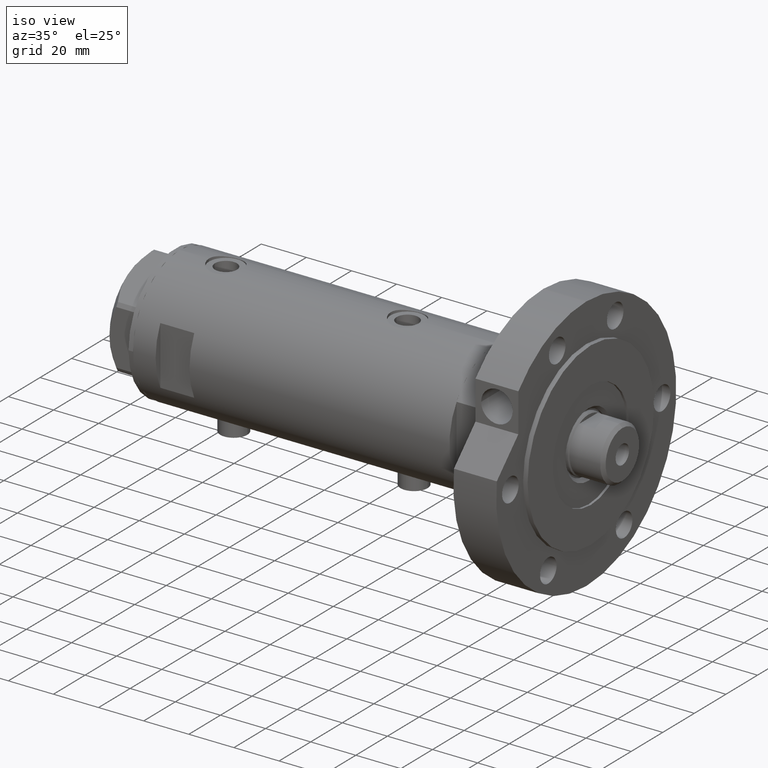
[diagram: clean part render]
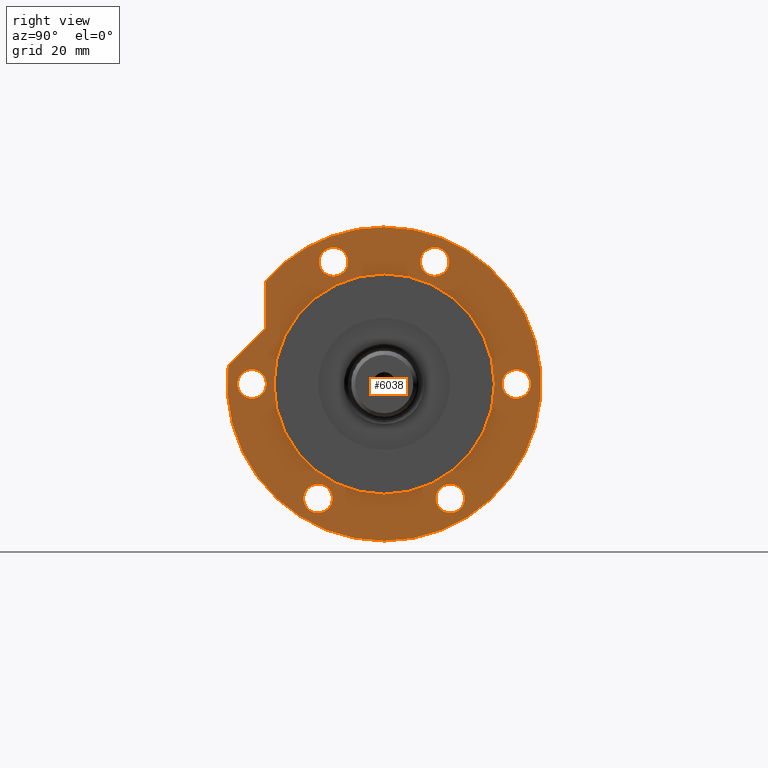
[diagram: tour spotlight — one face highlighted and labeled with its STEP entity id]
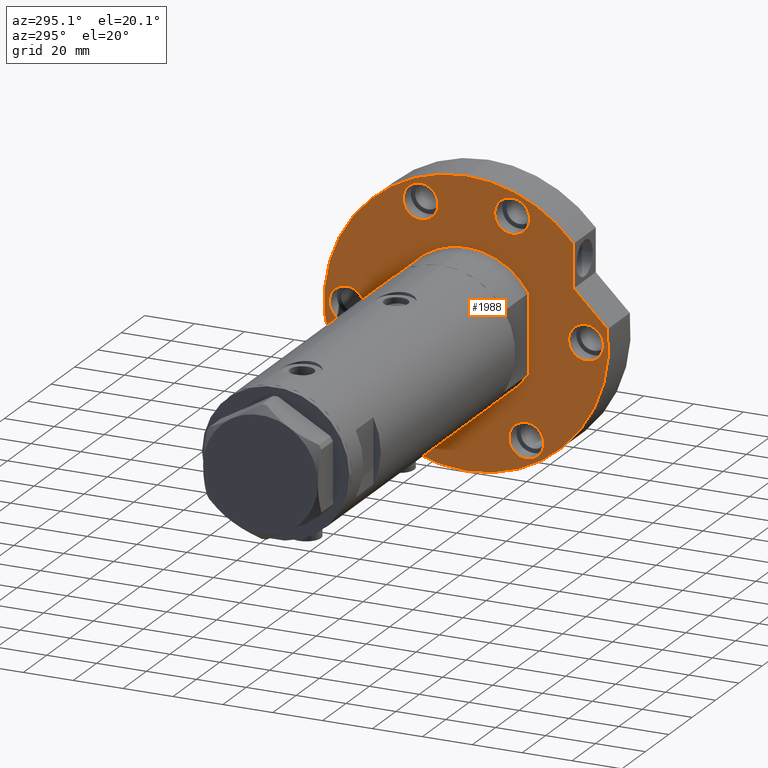
[diagram: tour spotlight — one face highlighted and labeled with its STEP entity id]
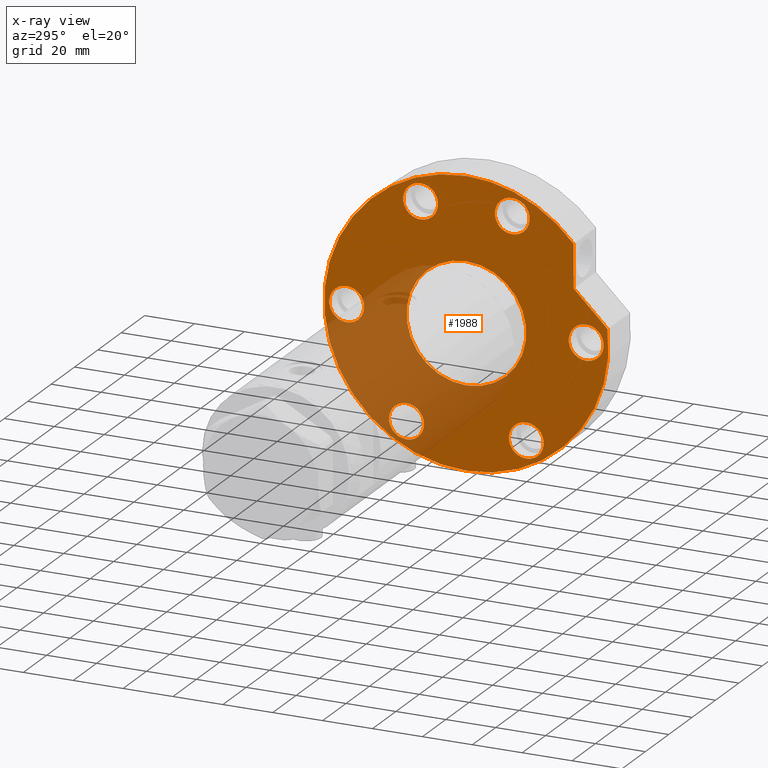
[diagram: x-ray of the same camera — body ghosted, this tour face saturated]
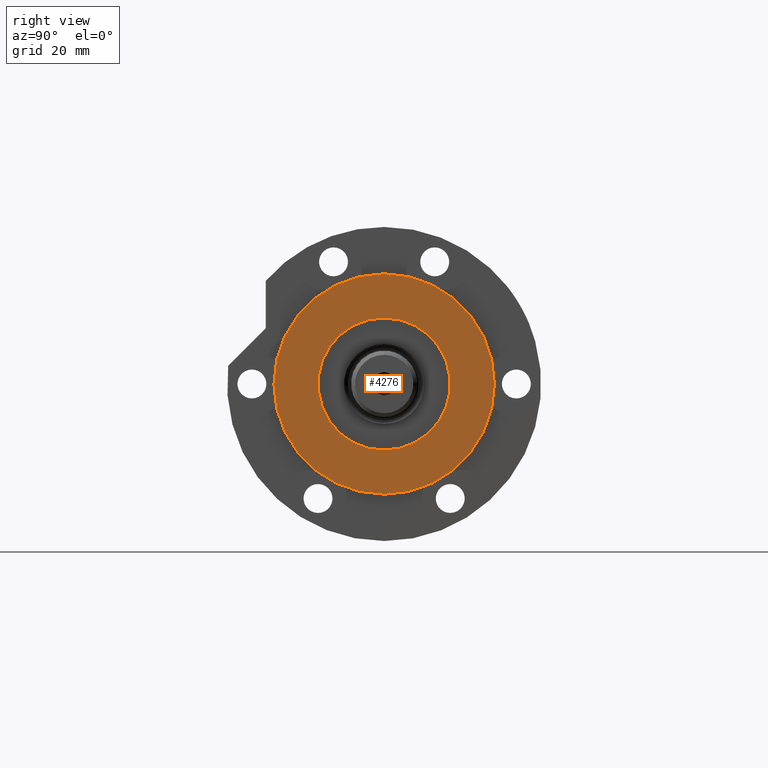
[diagram: tour spotlight — one face highlighted and labeled with its STEP entity id]
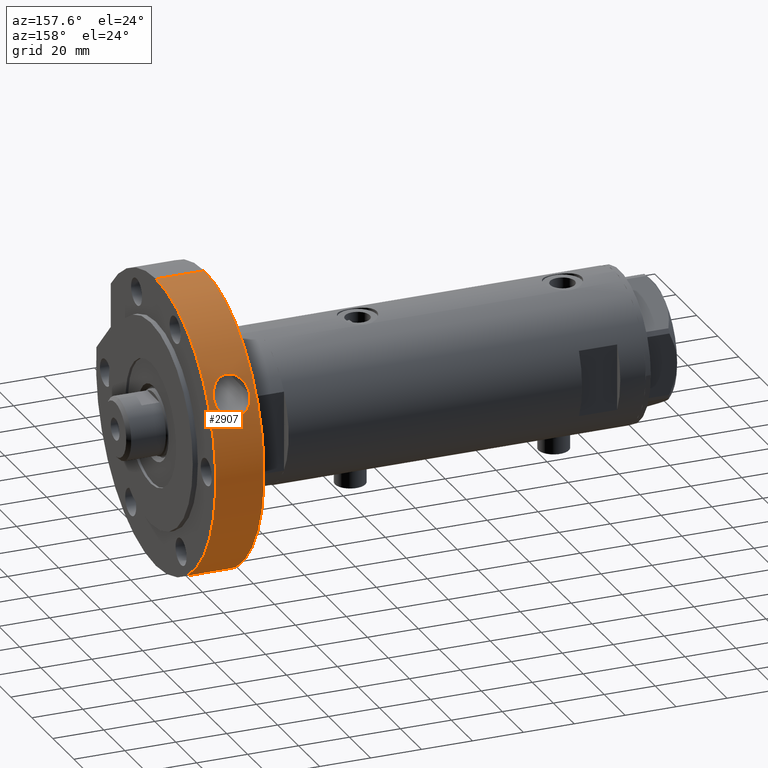
[diagram: tour spotlight — one face highlighted and labeled with its STEP entity id]
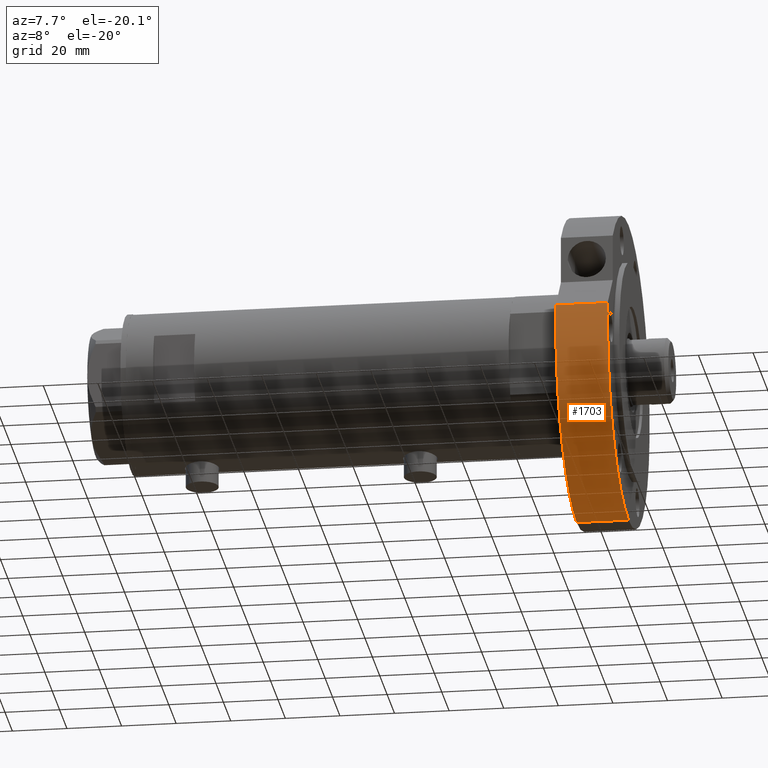
[diagram: tour spotlight — one face highlighted and labeled with its STEP entity id]
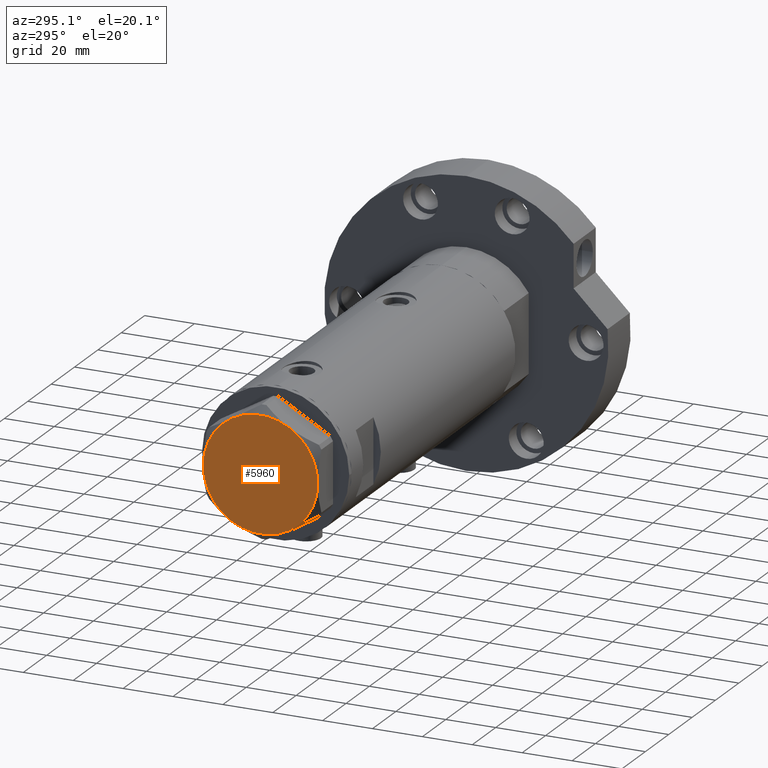
[diagram: tour spotlight — one face highlighted and labeled with its STEP entity id]
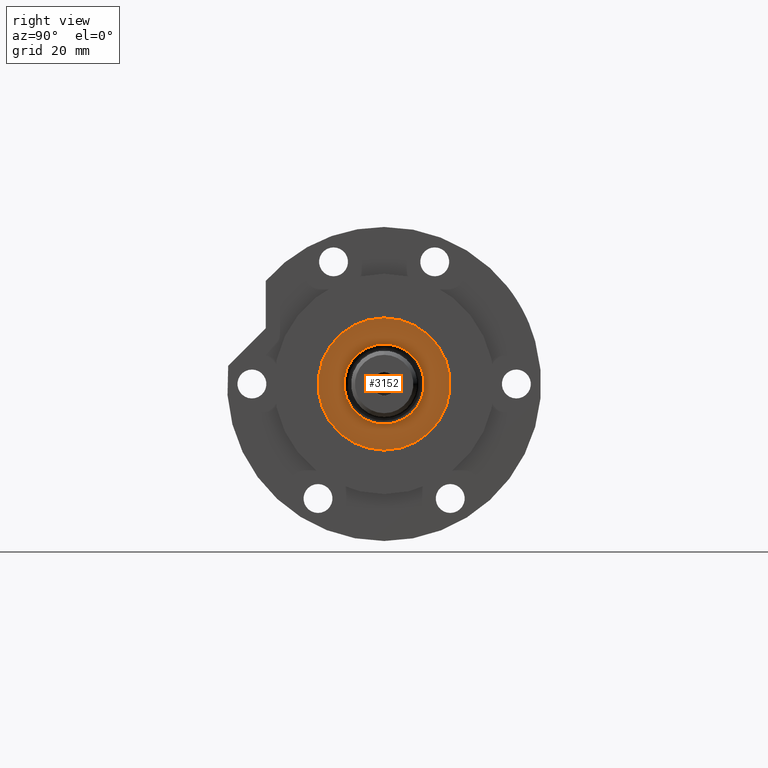
[diagram: tour spotlight — one face highlighted and labeled with its STEP entity id]
A machine part: a face-by-face anatomy tour. The part has 164 B-rep faces; the first image is the clean iso view, then the 7 largest visible faces are spotlighted one at a time (largest first), each with its STEP entity span.

Face 1 — right view, entity #6038. In plain terms, the highlighted planar face has unit normal (1, 0, -0).
Definition (entity closure, byte-faithful):
#4 = DIRECTION ( 'NONE',  ( 0.000000000000000000, 0.000000000000000000, 1.000000000000000000 ) ) ;
#38 = ORIENTED_EDGE ( 'NONE', *, *, #3229, .F. ) ;
#85 = CARTESIAN_POINT ( 'NONE',  ( -36.31921938165294961, -24.00000000000018829, 19.00000000000000000 ) ) ;
#87 = AXIS2_PLACEMENT_3D ( 'NONE', #3789, #129, #1791 ) ;
#88 = AXIS2_PLACEMENT_3D ( 'NONE', #4196, #1386, #954 ) ;
#98 = ORIENTED_EDGE ( 'NONE', *, *, #4560, .F. ) ;
#129 = DIRECTION ( 'NONE',  ( 0.000000000000000000, 0.000000000000000000, 1.000000000000000000 ) ) ;
#145 = EDGE_LOOP ( 'NONE', ( #5893, #4353 ) ) ;
#194 = CIRCLE ( 'NONE', #3933, 5.249999999999998224 ) ;
#213 = CARTESIAN_POINT ( 'NONE',  ( 6.569366352211361004, 56.62016801220598694, 19.00000000000000000 ) ) ;
#243 = FACE_BOUND ( 'NONE', #3400, .T. ) ;
#264 = VERTEX_POINT ( 'NONE', #5642 ) ;
#334 = CARTESIAN_POINT ( 'NONE',  ( -5.249999999999998224, 48.00000000000000000, 19.00000000000000000 ) ) ;
#394 = DIRECTION ( 'NONE',  ( 1.000000000000000000, 0.000000000000000000, 0.000000000000000000 ) ) ;
#409 = CARTESIAN_POINT ( 'NONE',  ( -57.00000000000000000, 0.000000000000000000, 19.00000000000000000 ) ) ;
#439 = ORIENTED_EDGE ( 'NONE', *, *, #4201, .F. ) ;
#477 = VECTOR ( 'NONE', #656, 999.9999999999998863 ) ;
#528 = DIRECTION ( 'NONE',  ( 1.000000000000000000, 0.000000000000000000, 0.000000000000000000 ) ) ;
#574 = CARTESIAN_POINT ( 'NONE',  ( 57.00000000000000000, 6.980486755139912911E-15, 19.00000000000000000 ) ) ;
#580 = DIRECTION ( 'NONE',  ( 1.000000000000000000, 0.000000000000000000, 0.000000000000000000 ) ) ;
#622 = CARTESIAN_POINT ( 'NONE',  ( -41.56921938165294961, -24.00000000000018829, 19.00000000000000000 ) ) ;
#652 = FACE_OUTER_BOUND ( 'NONE', #2427, .T. ) ;
#656 = DIRECTION ( 'NONE',  ( 0.7071067811865510144, -0.7071067811865441310, 0.000000000000000000 ) ) ;
#680 = ORIENTED_EDGE ( 'NONE', *, *, #2762, .F. ) ;
#693 = AXIS2_PLACEMENT_3D ( 'NONE', #4765, #869, #3239 ) ;
#717 = CARTESIAN_POINT ( 'NONE',  ( 31.59476718220863845, 31.59476718220895108, 19.00000000000000000 ) ) ;
#737 = DIRECTION ( 'NONE',  ( 0.000000000000000000, 0.000000000000000000, 1.000000000000000000 ) ) ;
#769 = CARTESIAN_POINT ( 'NONE',  ( 5.249999999999998224, -48.00000000000000000, 19.00000000000000000 ) ) ;
#789 = AXIS2_PLACEMENT_3D ( 'NONE', #3845, #1490, #3383 ) ;
#857 = DIRECTION ( 'NONE',  ( 0.000000000000000000, 0.000000000000000000, 1.000000000000000000 ) ) ;
#866 = EDGE_LOOP ( 'NONE', ( #3235, #2035 ) ) ;
#869 = DIRECTION ( 'NONE',  ( 0.000000000000000000, 0.000000000000000000, 1.000000000000000000 ) ) ;
#873 = VECTOR ( 'NONE', #2652, 1000.000000000000000 ) ;
#884 = DIRECTION ( 'NONE',  ( 0.000000000000000000, 0.000000000000000000, 1.000000000000000000 ) ) ;
#895 = AXIS2_PLACEMENT_3D ( 'NONE', #5952, #737, #4968 ) ;
#947 = DIRECTION ( 'NONE',  ( 0.000000000000000000, 0.000000000000000000, 1.000000000000000000 ) ) ;
#954 = DIRECTION ( 'NONE',  ( 1.000000000000000000, 0.000000000000000000, 0.000000000000000000 ) ) ;
#1028 = DIRECTION ( 'NONE',  ( 0.000000000000000000, 0.000000000000000000, 1.000000000000000000 ) ) ;
#1120 = EDGE_CURVE ( 'NONE', #5273, #5460, #4405, .T. ) ;
#1220 = ORIENTED_EDGE ( 'NONE', *, *, #6030, .F. ) ;
#1386 = DIRECTION ( 'NONE',  ( 0.000000000000000000, 0.000000000000000000, 1.000000000000000000 ) ) ;
#1453 = CIRCLE ( 'NONE', #789, 5.249999999999998224 ) ;
#1490 = DIRECTION ( 'NONE',  ( 0.000000000000000000, 0.000000000000000000, 1.000000000000000000 ) ) ;
#1565 = AXIS2_PLACEMENT_3D ( 'NONE', #3730, #4, #3266 ) ;
#1588 = CARTESIAN_POINT ( 'NONE',  ( -36.31921938165311303, 23.99999999999990408, 19.00000000000000000 ) ) ;
#1746 = CIRCLE ( 'NONE', #1565, 57.00000000000000000 ) ;
#1791 = DIRECTION ( 'NONE',  ( 1.000000000000000000, 0.000000000000000000, 0.000000000000000000 ) ) ;
#1809 = VERTEX_POINT ( 'NONE', #1588 ) ;
#1866 = CARTESIAN_POINT ( 'NONE',  ( 37.43945616129992970, 42.98007820311755012, 19.00000000000000000 ) ) ;
#1868 = CIRCLE ( 'NONE', #5238, 5.249999999999997335 ) ;
#1871 = CARTESIAN_POINT ( 'NONE',  ( 49.59621756054168173, 18.36880475352450048, 19.00000000000000000 ) ) ;
#1874 = CARTESIAN_POINT ( 'NONE',  ( -46.81921938165310593, 23.99999999999990408, 19.00000000000000000 ) ) ;
#1900 = ORIENTED_EDGE ( 'NONE', *, *, #5002, .F. ) ;
#1932 = CARTESIAN_POINT ( 'NONE',  ( 0.000000000000000000, 0.000000000000000000, 19.00000000000000000 ) ) ;
#1970 = CARTESIAN_POINT ( 'NONE',  ( -46.81921938165294961, -24.00000000000018829, 19.00000000000000000 ) ) ;
#1971 = DIRECTION ( 'NONE',  ( 1.000000000000000000, 0.000000000000000000, 0.000000000000000000 ) ) ;
#2028 = CARTESIAN_POINT ( 'NONE',  ( -5.249999999999998224, -48.00000000000000000, 19.00000000000000000 ) ) ;
#2035 = ORIENTED_EDGE ( 'NONE', *, *, #3306, .F. ) ;
#2057 = CIRCLE ( 'NONE', #5315, 5.249999999999997335 ) ;
#2063 = FACE_BOUND ( 'NONE', #3962, .T. ) ;
#2083 = EDGE_CURVE ( 'NONE', #2264, #1809, #6102, .T. ) ;
#2086 = ORIENTED_EDGE ( 'NONE', *, *, #2316, .T. ) ;
#2090 = DIRECTION ( 'NONE',  ( 1.000000000000000000, 0.000000000000000000, 0.000000000000000000 ) ) ;
#2097 = PLANE ( 'NONE',  #2471 ) ;
#2149 = DIRECTION ( 'NONE',  ( 0.000000000000000000, 0.000000000000000000, 1.000000000000000000 ) ) ;
#2157 = CIRCLE ( 'NONE', #88, 5.249999999999998224 ) ;
#2169 = CIRCLE ( 'NONE', #4331, 57.00000000000000000 ) ;
#2171 = CARTESIAN_POINT ( 'NONE',  ( 5.249999999999998224, 48.00000000000000000, 19.00000000000000000 ) ) ;
#2205 = EDGE_CURVE ( 'NONE', #5070, #2588, #4591, .T. ) ;
#2207 = DIRECTION ( 'NONE',  ( 0.000000000000000000, 0.000000000000000000, 1.000000000000000000 ) ) ;
#2264 = VERTEX_POINT ( 'NONE', #1874 ) ;
#2309 = VERTEX_POINT ( 'NONE', #85 ) ;
#2315 = DIRECTION ( 'NONE',  ( 1.000000000000000000, 0.000000000000000000, 0.000000000000000000 ) ) ;
#2316 = EDGE_CURVE ( 'NONE', #2425, #3263, #4030, .T. ) ;
#2354 = CIRCLE ( 'NONE', #5030, 5.249999999999998224 ) ;
#2425 = VERTEX_POINT ( 'NONE', #213 ) ;
#2427 = EDGE_LOOP ( 'NONE', ( #6042, #439, #2086, #5139, #3791 ) ) ;
#2429 = DIRECTION ( 'NONE',  ( 1.000000000000000000, 0.000000000000000000, 0.000000000000000000 ) ) ;
#2439 = CARTESIAN_POINT ( 'NONE',  ( 40.00000000000000000, 4.898587196589413026E-15, 19.00000000000000000 ) ) ;
#2471 = AXIS2_PLACEMENT_3D ( 'NONE', #2527, #2149, #3946 ) ;
#2480 = VERTEX_POINT ( 'NONE', #2028 ) ;
#2521 = CARTESIAN_POINT ( 'NONE',  ( 0.000000000000000000, 0.000000000000000000, 19.00000000000000000 ) ) ;
#2527 = CARTESIAN_POINT ( 'NONE',  ( 0.000000000000000000, 0.000000000000000000, 19.00000000000000000 ) ) ;
#2553 = CARTESIAN_POINT ( 'NONE',  ( 44.34621756054168173, -18.36880475352450048, 19.00000000000000000 ) ) ;
#2588 = VERTEX_POINT ( 'NONE', #1866 ) ;
#2619 = CARTESIAN_POINT ( 'NONE',  ( 39.09621756054168173, 18.36880475352450048, 19.00000000000000000 ) ) ;
#2642 = FACE_BOUND ( 'NONE', #2904, .T. ) ;
#2652 = DIRECTION ( 'NONE',  ( 1.000000000000000000, 0.000000000000000000, -0.000000000000000000 ) ) ;
#2728 = CARTESIAN_POINT ( 'NONE',  ( 44.34621756054168173, 18.36880475352450048, 19.00000000000000000 ) ) ;
#2749 = VERTEX_POINT ( 'NONE', #2619 ) ;
#2762 = EDGE_CURVE ( 'NONE', #5460, #5273, #2057, .T. ) ;
#2776 = CARTESIAN_POINT ( 'NONE',  ( 49.59621756054168173, -18.36880475352450048, 19.00000000000000000 ) ) ;
#2786 = DIRECTION ( 'NONE',  ( 0.000000000000000000, 0.000000000000000000, 1.000000000000000000 ) ) ;
#2810 = VERTEX_POINT ( 'NONE', #1871 ) ;
#2814 = DIRECTION ( 'NONE',  ( 1.000000000000000000, 0.000000000000000000, 0.000000000000000000 ) ) ;
#2820 = DIRECTION ( 'NONE',  ( 0.000000000000000000, 0.000000000000000000, 1.000000000000000000 ) ) ;
#2827 = AXIS2_PLACEMENT_3D ( 'NONE', #1932, #947, #1971 ) ;
#2839 = CIRCLE ( 'NONE', #3731, 40.00000000000000000 ) ;
#2904 = EDGE_LOOP ( 'NONE', ( #38, #3200 ) ) ;
#2999 = EDGE_CURVE ( 'NONE', #5546, #4130, #194, .T. ) ;
#3018 = CARTESIAN_POINT ( 'NONE',  ( 20.20945616129993283, 42.98007820311755012, 19.00000000000000000 ) ) ;
#3040 = FACE_BOUND ( 'NONE', #145, .T. ) ;
#3071 = ORIENTED_EDGE ( 'NONE', *, *, #1120, .F. ) ;
#3112 = DIRECTION ( 'NONE',  ( 1.000000000000000000, 0.000000000000000000, 0.000000000000000000 ) ) ;
#3200 = ORIENTED_EDGE ( 'NONE', *, *, #4711, .F. ) ;
#3229 = EDGE_CURVE ( 'NONE', #2480, #6101, #2157, .T. ) ;
#3235 = ORIENTED_EDGE ( 'NONE', *, *, #2083, .F. ) ;
#3239 = DIRECTION ( 'NONE',  ( 1.000000000000000000, 0.000000000000000000, 0.000000000000000000 ) ) ;
#3260 = DIRECTION ( 'NONE',  ( 0.000000000000000000, 0.000000000000000000, 1.000000000000000000 ) ) ;
#3263 = VERTEX_POINT ( 'NONE', #409 ) ;
#3266 = DIRECTION ( 'NONE',  ( 1.000000000000000000, 0.000000000000000000, 0.000000000000000000 ) ) ;
#3306 = EDGE_CURVE ( 'NONE', #1809, #2264, #5516, .T. ) ;
#3383 = DIRECTION ( 'NONE',  ( 1.000000000000000000, 0.000000000000000000, 0.000000000000000000 ) ) ;
#3400 = EDGE_LOOP ( 'NONE', ( #1220, #5808 ) ) ;
#3574 = DIRECTION ( 'NONE',  ( 1.000000000000000000, 0.000000000000000000, 0.000000000000000000 ) ) ;
#3640 = CARTESIAN_POINT ( 'NONE',  ( 0.000000000000000000, 42.98007820311755012, 19.00000000000000000 ) ) ;
#3679 = EDGE_CURVE ( 'NONE', #3263, #4296, #2169, .T. ) ;
#3712 = EDGE_CURVE ( 'NONE', #2810, #2749, #4837, .T. ) ;
#3730 = CARTESIAN_POINT ( 'NONE',  ( 0.000000000000000000, 0.000000000000000000, 19.00000000000000000 ) ) ;
#3731 = AXIS2_PLACEMENT_3D ( 'NONE', #2521, #1028, #580 ) ;
#3789 = CARTESIAN_POINT ( 'NONE',  ( 0.000000000000000000, 0.000000000000000000, 19.00000000000000000 ) ) ;
#3791 = ORIENTED_EDGE ( 'NONE', *, *, #3990, .T. ) ;
#3797 = EDGE_CURVE ( 'NONE', #4130, #5546, #2354, .T. ) ;
#3821 = AXIS2_PLACEMENT_3D ( 'NONE', #4629, #5067, #3112 ) ;
#3845 = CARTESIAN_POINT ( 'NONE',  ( 0.000000000000000000, -48.00000000000000000, 19.00000000000000000 ) ) ;
#3933 = AXIS2_PLACEMENT_3D ( 'NONE', #5518, #884, #2315 ) ;
#3946 = DIRECTION ( 'NONE',  ( 1.000000000000000000, 0.000000000000000000, -0.000000000000000000 ) ) ;
#3962 = EDGE_LOOP ( 'NONE', ( #680, #3071 ) ) ;
#3990 = EDGE_CURVE ( 'NONE', #4296, #2588, #1746, .T. ) ;
#4030 = CIRCLE ( 'NONE', #2827, 57.00000000000000000 ) ;
#4047 = CIRCLE ( 'NONE', #895, 5.249999999999997335 ) ;
#4130 = VERTEX_POINT ( 'NONE', #334 ) ;
#4135 = CIRCLE ( 'NONE', #87, 40.00000000000000000 ) ;
#4163 = DIRECTION ( 'NONE',  ( 1.000000000000000000, 0.000000000000000000, 0.000000000000000000 ) ) ;
#4196 = CARTESIAN_POINT ( 'NONE',  ( 0.000000000000000000, -48.00000000000000000, 19.00000000000000000 ) ) ;
#4201 = EDGE_CURVE ( 'NONE', #2425, #5070, #5798, .T. ) ;
#4203 = AXIS2_PLACEMENT_3D ( 'NONE', #5220, #4786, #528 ) ;
#4296 = VERTEX_POINT ( 'NONE', #574 ) ;
#4331 = AXIS2_PLACEMENT_3D ( 'NONE', #5149, #3260, #394 ) ;
#4353 = ORIENTED_EDGE ( 'NONE', *, *, #4460, .F. ) ;
#4405 = CIRCLE ( 'NONE', #4203, 5.249999999999997335 ) ;
#4431 = DIRECTION ( 'NONE',  ( 0.000000000000000000, 0.000000000000000000, 1.000000000000000000 ) ) ;
#4460 = EDGE_CURVE ( 'NONE', #2309, #5943, #5026, .T. ) ;
#4531 = FACE_BOUND ( 'NONE', #4597, .T. ) ;
#4548 = ORIENTED_EDGE ( 'NONE', *, *, #3797, .F. ) ;
#4560 = EDGE_CURVE ( 'NONE', #264, #5005, #2839, .T. ) ;
#4576 = ORIENTED_EDGE ( 'NONE', *, *, #2999, .F. ) ;
#4591 = LINE ( 'NONE', #3640, #873 ) ;
#4597 = EDGE_LOOP ( 'NONE', ( #98, #1900 ) ) ;
#4629 = CARTESIAN_POINT ( 'NONE',  ( -41.56921938165310593, 23.99999999999990408, 19.00000000000000000 ) ) ;
#4711 = EDGE_CURVE ( 'NONE', #6101, #2480, #1453, .T. ) ;
#4765 = CARTESIAN_POINT ( 'NONE',  ( -41.56921938165310593, 23.99999999999990408, 19.00000000000000000 ) ) ;
#4786 = DIRECTION ( 'NONE',  ( 0.000000000000000000, 0.000000000000000000, 1.000000000000000000 ) ) ;
#4821 = AXIS2_PLACEMENT_3D ( 'NONE', #5084, #2207, #3574 ) ;
#4837 = CIRCLE ( 'NONE', #5714, 5.249999999999997335 ) ;
#4880 = EDGE_LOOP ( 'NONE', ( #4548, #4576 ) ) ;
#4903 = FACE_BOUND ( 'NONE', #866, .T. ) ;
#4942 = FACE_BOUND ( 'NONE', #4880, .T. ) ;
#4968 = DIRECTION ( 'NONE',  ( 1.000000000000000000, 0.000000000000000000, 0.000000000000000000 ) ) ;
#5002 = EDGE_CURVE ( 'NONE', #5005, #264, #4135, .T. ) ;
#5005 = VERTEX_POINT ( 'NONE', #2439 ) ;
#5026 = CIRCLE ( 'NONE', #4821, 5.249999999999997335 ) ;
#5030 = AXIS2_PLACEMENT_3D ( 'NONE', #5089, #857, #4163 ) ;
#5067 = DIRECTION ( 'NONE',  ( 0.000000000000000000, 0.000000000000000000, 1.000000000000000000 ) ) ;
#5070 = VERTEX_POINT ( 'NONE', #3018 ) ;
#5084 = CARTESIAN_POINT ( 'NONE',  ( -41.56921938165294961, -24.00000000000018829, 19.00000000000000000 ) ) ;
#5089 = CARTESIAN_POINT ( 'NONE',  ( 0.000000000000000000, 48.00000000000000000, 19.00000000000000000 ) ) ;
#5139 = ORIENTED_EDGE ( 'NONE', *, *, #3679, .T. ) ;
#5149 = CARTESIAN_POINT ( 'NONE',  ( 0.000000000000000000, 0.000000000000000000, 19.00000000000000000 ) ) ;
#5220 = CARTESIAN_POINT ( 'NONE',  ( 44.34621756054168173, -18.36880475352450048, 19.00000000000000000 ) ) ;
#5238 = AXIS2_PLACEMENT_3D ( 'NONE', #622, #2820, #2429 ) ;
#5273 = VERTEX_POINT ( 'NONE', #2776 ) ;
#5315 = AXIS2_PLACEMENT_3D ( 'NONE', #2553, #4431, #2090 ) ;
#5460 = VERTEX_POINT ( 'NONE', #5820 ) ;
#5516 = CIRCLE ( 'NONE', #693, 5.249999999999997335 ) ;
#5518 = CARTESIAN_POINT ( 'NONE',  ( 0.000000000000000000, 48.00000000000000000, 19.00000000000000000 ) ) ;
#5546 = VERTEX_POINT ( 'NONE', #2171 ) ;
#5642 = CARTESIAN_POINT ( 'NONE',  ( -40.00000000000000000, 0.000000000000000000, 19.00000000000000000 ) ) ;
#5714 = AXIS2_PLACEMENT_3D ( 'NONE', #2728, #2786, #2814 ) ;
#5798 = LINE ( 'NONE', #717, #477 ) ;
#5808 = ORIENTED_EDGE ( 'NONE', *, *, #3712, .F. ) ;
#5820 = CARTESIAN_POINT ( 'NONE',  ( 39.09621756054168173, -18.36880475352450048, 19.00000000000000000 ) ) ;
#5893 = ORIENTED_EDGE ( 'NONE', *, *, #5989, .F. ) ;
#5943 = VERTEX_POINT ( 'NONE', #1970 ) ;
#5952 = CARTESIAN_POINT ( 'NONE',  ( 44.34621756054168173, 18.36880475352450048, 19.00000000000000000 ) ) ;
#5989 = EDGE_CURVE ( 'NONE', #5943, #2309, #1868, .T. ) ;
#6030 = EDGE_CURVE ( 'NONE', #2749, #2810, #4047, .T. ) ;
#6038 = ADVANCED_FACE ( 'NONE', ( #4942, #243, #2063, #2642, #3040, #4903, #652, #4531 ), #2097, .T. ) ;
#6042 = ORIENTED_EDGE ( 'NONE', *, *, #2205, .F. ) ;
#6101 = VERTEX_POINT ( 'NONE', #769 ) ;
#6102 = CIRCLE ( 'NONE', #3821, 5.249999999999997335 ) ;

Face 2 — auxiliary view, entity #1988. An x-ray twin of the same camera follows (body ghosted, this face saturated) — the face is partly hidden behind the body. In plain terms, the highlighted planar face has unit normal (1, 0, -0).
Definition (entity closure, byte-faithful):
#26 = ORIENTED_EDGE ( 'NONE', *, *, #3591, .F. ) ;
#51 = VERTEX_POINT ( 'NONE', #4345 ) ;
#167 = EDGE_CURVE ( 'NONE', #4024, #704, #2902, .T. ) ;
#176 = AXIS2_PLACEMENT_3D ( 'NONE', #3300, #2378, #560 ) ;
#235 = VERTEX_POINT ( 'NONE', #5799 ) ;
#240 = DIRECTION ( 'NONE',  ( 0.000000000000000000, 0.000000000000000000, -1.000000000000000000 ) ) ;
#275 = VECTOR ( 'NONE', #4111, 1000.000000000000000 ) ;
#301 = EDGE_CURVE ( 'NONE', #51, #1022, #761, .T. ) ;
#341 = ORIENTED_EDGE ( 'NONE', *, *, #1893, .T. ) ;
#367 = DIRECTION ( 'NONE',  ( -1.000000000000000000, 0.000000000000000000, 0.000000000000000000 ) ) ;
#371 = AXIS2_PLACEMENT_3D ( 'NONE', #1905, #4136, #367 ) ;
#390 = CARTESIAN_POINT ( 'NONE',  ( -6.999999999999999112, 48.00000000000000000, 0.000000000000000000 ) ) ;
#410 = FACE_BOUND ( 'NONE', #4976, .T. ) ;
#444 = ORIENTED_EDGE ( 'NONE', *, *, #5980, .F. ) ;
#463 = PLANE ( 'NONE',  #176 ) ;
#468 = ORIENTED_EDGE ( 'NONE', *, *, #3505, .F. ) ;
#552 = CARTESIAN_POINT ( 'NONE',  ( -24.00000000000000355, 2.939152317953648289E-15, 0.000000000000000000 ) ) ;
#560 = DIRECTION ( 'NONE',  ( 1.000000000000000000, 0.000000000000000000, -0.000000000000000000 ) ) ;
#595 = VERTEX_POINT ( 'NONE', #3738 ) ;
#597 = FACE_BOUND ( 'NONE', #1243, .T. ) ;
#669 = EDGE_CURVE ( 'NONE', #4855, #2018, #3808, .T. ) ;
#696 = VERTEX_POINT ( 'NONE', #1193 ) ;
#704 = VERTEX_POINT ( 'NONE', #3075 ) ;
#761 = CIRCLE ( 'NONE', #4697, 57.00000000000000000 ) ;
#772 = AXIS2_PLACEMENT_3D ( 'NONE', #5741, #1038, #4812 ) ;
#802 = VERTEX_POINT ( 'NONE', #1992 ) ;
#879 = AXIS2_PLACEMENT_3D ( 'NONE', #5022, #2692, #4578 ) ;
#880 = CIRCLE ( 'NONE', #5321, 6.999999999999999112 ) ;
#892 = CARTESIAN_POINT ( 'NONE',  ( -57.00000000000000000, 0.000000000000000000, 0.000000000000000000 ) ) ;
#899 = ORIENTED_EDGE ( 'NONE', *, *, #1402, .F. ) ;
#1022 = VERTEX_POINT ( 'NONE', #1347 ) ;
#1037 = CARTESIAN_POINT ( 'NONE',  ( 0.000000000000000000, -48.00000000000000000, 0.000000000000000000 ) ) ;
#1038 = DIRECTION ( 'NONE',  ( 0.000000000000000000, 0.000000000000000000, -1.000000000000000000 ) ) ;
#1112 = CARTESIAN_POINT ( 'NONE',  ( 0.000000000000000000, -48.00000000000000000, 0.000000000000000000 ) ) ;
#1126 = DIRECTION ( 'NONE',  ( -1.000000000000000000, 0.000000000000000000, 0.000000000000000000 ) ) ;
#1161 = DIRECTION ( 'NONE',  ( -1.000000000000000000, 0.000000000000000000, 0.000000000000000000 ) ) ;
#1193 = CARTESIAN_POINT ( 'NONE',  ( 51.34621756054168173, -18.36880475352450048, 0.000000000000000000 ) ) ;
#1242 = CARTESIAN_POINT ( 'NONE',  ( 20.20945616129993283, 42.98007820311755012, 0.000000000000000000 ) ) ;
#1243 = EDGE_LOOP ( 'NONE', ( #1585, #3465 ) ) ;
#1347 = CARTESIAN_POINT ( 'NONE',  ( 37.43945616129992970, 42.98007820311755012, 0.000000000000000000 ) ) ;
#1356 = AXIS2_PLACEMENT_3D ( 'NONE', #2326, #4689, #1775 ) ;
#1402 = EDGE_CURVE ( 'NONE', #2771, #51, #3313, .T. ) ;
#1407 = DIRECTION ( 'NONE',  ( -1.000000000000000000, 0.000000000000000000, 0.000000000000000000 ) ) ;
#1412 = EDGE_LOOP ( 'NONE', ( #3424, #4634 ) ) ;
#1426 = ORIENTED_EDGE ( 'NONE', *, *, #301, .F. ) ;
#1460 = ORIENTED_EDGE ( 'NONE', *, *, #2065, .F. ) ;
#1469 = DIRECTION ( 'NONE',  ( -1.000000000000000000, 0.000000000000000000, 0.000000000000000000 ) ) ;
#1536 = CIRCLE ( 'NONE', #772, 6.999999999999999112 ) ;
#1539 = CIRCLE ( 'NONE', #3627, 6.999999999999999112 ) ;
#1543 = VECTOR ( 'NONE', #5703, 999.9999999999998863 ) ;
#1585 = ORIENTED_EDGE ( 'NONE', *, *, #2800, .T. ) ;
#1598 = EDGE_CURVE ( 'NONE', #3036, #2117, #1838, .T. ) ;
#1617 = CARTESIAN_POINT ( 'NONE',  ( 6.569366352211361004, 56.62016801220598694, 0.000000000000000000 ) ) ;
#1668 = CIRCLE ( 'NONE', #3742, 6.999999999999999112 ) ;
#1686 = DIRECTION ( 'NONE',  ( 1.000000000000000000, 0.000000000000000000, 0.000000000000000000 ) ) ;
#1693 = EDGE_LOOP ( 'NONE', ( #4647, #444 ) ) ;
#1742 = AXIS2_PLACEMENT_3D ( 'NONE', #5938, #3582, #1686 ) ;
#1741 = CARTESIAN_POINT ( 'NONE',  ( 44.34621756054168173, -18.36880475352450048, 0.000000000000000000 ) ) ;
#1760 = CIRCLE ( 'NONE', #5128, 6.999999999999999112 ) ;
#1763 = VERTEX_POINT ( 'NONE', #2979 ) ;
#1775 = DIRECTION ( 'NONE',  ( 1.000000000000000000, 0.000000000000000000, 0.000000000000000000 ) ) ;
#1812 = FACE_BOUND ( 'NONE', #1412, .T. ) ;
#1822 = EDGE_CURVE ( 'NONE', #4569, #5077, #1536, .T. ) ;
#1838 = CIRCLE ( 'NONE', #371, 6.999999999999999112 ) ;
#1893 = EDGE_CURVE ( 'NONE', #4795, #1022, #5914, .T. ) ;
#1905 = CARTESIAN_POINT ( 'NONE',  ( 0.000000000000000000, 48.00000000000000000, 0.000000000000000000 ) ) ;
#1964 = CARTESIAN_POINT ( 'NONE',  ( 0.000000000000000000, 0.000000000000000000, 0.000000000000000000 ) ) ;
#1988 = ADVANCED_FACE ( 'NONE', ( #2305, #3701, #4551, #410, #1812, #4287, #597, #4696 ), #463, .F. ) ;
#1992 = CARTESIAN_POINT ( 'NONE',  ( -6.999999999999999112, -48.00000000000000000, 0.000000000000000000 ) ) ;
#2018 = VERTEX_POINT ( 'NONE', #3521 ) ;
#2038 = DIRECTION ( 'NONE',  ( 1.000000000000000000, 0.000000000000000000, 0.000000000000000000 ) ) ;
#2065 = EDGE_CURVE ( 'NONE', #2447, #2771, #3537, .T. ) ;
#2076 = CARTESIAN_POINT ( 'NONE',  ( 0.000000000000000000, 0.000000000000000000, 0.000000000000000000 ) ) ;
#2096 = CARTESIAN_POINT ( 'NONE',  ( 44.34621756054168173, -18.36880475352450048, 0.000000000000000000 ) ) ;
#2117 = VERTEX_POINT ( 'NONE', #5127 ) ;
#2123 = EDGE_LOOP ( 'NONE', ( #3665, #3670 ) ) ;
#2135 = AXIS2_PLACEMENT_3D ( 'NONE', #5459, #240, #1126 ) ;
#2140 = EDGE_CURVE ( 'NONE', #2018, #4855, #1539, .T. ) ;
#2159 = CARTESIAN_POINT ( 'NONE',  ( 0.000000000000000000, 48.00000000000000000, 0.000000000000000000 ) ) ;
#2162 = AXIS2_PLACEMENT_3D ( 'NONE', #3188, #2268, #4160 ) ;
#2192 = CARTESIAN_POINT ( 'NONE',  ( -41.56921938165310593, 23.99999999999990408, 0.000000000000000000 ) ) ;
#2248 = ORIENTED_EDGE ( 'NONE', *, *, #2279, .F. ) ;
#2268 = DIRECTION ( 'NONE',  ( 0.000000000000000000, 0.000000000000000000, -1.000000000000000000 ) ) ;
#2276 = DIRECTION ( 'NONE',  ( -1.000000000000000000, 0.000000000000000000, 0.000000000000000000 ) ) ;
#2279 = EDGE_CURVE ( 'NONE', #802, #595, #5019, .T. ) ;
#2305 = FACE_BOUND ( 'NONE', #4297, .T. ) ;
#2326 = CARTESIAN_POINT ( 'NONE',  ( 0.000000000000000000, 0.000000000000000000, 0.000000000000000000 ) ) ;
#2375 = ORIENTED_EDGE ( 'NONE', *, *, #1598, .F. ) ;
#2378 = DIRECTION ( 'NONE',  ( 0.000000000000000000, 0.000000000000000000, 1.000000000000000000 ) ) ;
#2447 = VERTEX_POINT ( 'NONE', #1617 ) ;
#2561 = CIRCLE ( 'NONE', #2162, 6.999999999999999112 ) ;
#2567 = CIRCLE ( 'NONE', #879, 6.999999999999999112 ) ;
#2596 = DIRECTION ( 'NONE',  ( 1.000000000000000000, 0.000000000000000000, 0.000000000000000000 ) ) ;
#2626 = EDGE_CURVE ( 'NONE', #2447, #4795, #3847, .T. ) ;
#2678 = DIRECTION ( 'NONE',  ( 0.000000000000000000, 0.000000000000000000, -1.000000000000000000 ) ) ;
#2692 = DIRECTION ( 'NONE',  ( 0.000000000000000000, 0.000000000000000000, -1.000000000000000000 ) ) ;
#2771 = VERTEX_POINT ( 'NONE', #892 ) ;
#2788 = DIRECTION ( 'NONE',  ( 1.000000000000000000, 0.000000000000000000, 0.000000000000000000 ) ) ;
#2800 = EDGE_CURVE ( 'NONE', #704, #4024, #3033, .T. ) ;
#2902 = CIRCLE ( 'NONE', #5196, 24.00000000000000355 ) ;
#2954 = ORIENTED_EDGE ( 'NONE', *, *, #3338, .F. ) ;
#2979 = CARTESIAN_POINT ( 'NONE',  ( 37.34621756054168173, -18.36880475352450048, 0.000000000000000000 ) ) ;
#2984 = DIRECTION ( 'NONE',  ( 0.000000000000000000, 0.000000000000000000, -1.000000000000000000 ) ) ;
#3012 = VERTEX_POINT ( 'NONE', #4207 ) ;
#3033 = CIRCLE ( 'NONE', #1356, 24.00000000000000355 ) ;
#3036 = VERTEX_POINT ( 'NONE', #390 ) ;
#3044 = EDGE_CURVE ( 'NONE', #5077, #4569, #2561, .T. ) ;
#3075 = CARTESIAN_POINT ( 'NONE',  ( 24.00000000000000355, 0.000000000000000000, 0.000000000000000000 ) ) ;
#3118 = EDGE_LOOP ( 'NONE', ( #5480, #341, #1426, #899, #1460 ) ) ;
#3188 = CARTESIAN_POINT ( 'NONE',  ( -41.56921938165294961, -24.00000000000018829, 0.000000000000000000 ) ) ;
#3226 = AXIS2_PLACEMENT_3D ( 'NONE', #1037, #3762, #1407 ) ;
#3300 = CARTESIAN_POINT ( 'NONE',  ( 0.000000000000000000, 0.000000000000000000, 0.000000000000000000 ) ) ;
#3313 = CIRCLE ( 'NONE', #4802, 57.00000000000000000 ) ;
#3338 = EDGE_CURVE ( 'NONE', #595, #802, #880, .T. ) ;
#3381 = CARTESIAN_POINT ( 'NONE',  ( 20.20945616129993283, 42.98007820311755012, 0.000000000000000000 ) ) ;
#3424 = ORIENTED_EDGE ( 'NONE', *, *, #3044, .F. ) ;
#3465 = ORIENTED_EDGE ( 'NONE', *, *, #167, .T. ) ;
#3505 = EDGE_CURVE ( 'NONE', #2117, #3036, #3938, .T. ) ;
#3520 = DIRECTION ( 'NONE',  ( -1.000000000000000000, 0.000000000000000000, 0.000000000000000000 ) ) ;
#3521 = CARTESIAN_POINT ( 'NONE',  ( -48.56921938165310593, 23.99999999999990408, 0.000000000000000000 ) ) ;
#3537 = CIRCLE ( 'NONE', #1742, 57.00000000000000000 ) ;
#3582 = DIRECTION ( 'NONE',  ( 0.000000000000000000, 0.000000000000000000, 1.000000000000000000 ) ) ;
#3591 = EDGE_CURVE ( 'NONE', #696, #1763, #1760, .T. ) ;
#3627 = AXIS2_PLACEMENT_3D ( 'NONE', #2192, #5096, #2276 ) ;
#3641 = AXIS2_PLACEMENT_3D ( 'NONE', #2159, #4099, #3520 ) ;
#3665 = ORIENTED_EDGE ( 'NONE', *, *, #2140, .F. ) ;
#3670 = ORIENTED_EDGE ( 'NONE', *, *, #669, .F. ) ;
#3701 = FACE_BOUND ( 'NONE', #1693, .T. ) ;
#3738 = CARTESIAN_POINT ( 'NONE',  ( 6.999999999999999112, -48.00000000000000000, 0.000000000000000000 ) ) ;
#3742 = AXIS2_PLACEMENT_3D ( 'NONE', #4846, #4277, #5702 ) ;
#3762 = DIRECTION ( 'NONE',  ( 0.000000000000000000, 0.000000000000000000, -1.000000000000000000 ) ) ;
#3808 = CIRCLE ( 'NONE', #2135, 6.999999999999999112 ) ;
#3830 = CIRCLE ( 'NONE', #5706, 6.999999999999999112 ) ;
#3847 = LINE ( 'NONE', #5307, #1543 ) ;
#3938 = CIRCLE ( 'NONE', #3641, 6.999999999999999112 ) ;
#3978 = DIRECTION ( 'NONE',  ( 0.000000000000000000, 0.000000000000000000, -1.000000000000000000 ) ) ;
#3983 = CARTESIAN_POINT ( 'NONE',  ( 0.000000000000000000, 0.000000000000000000, 0.000000000000000000 ) ) ;
#4024 = VERTEX_POINT ( 'NONE', #552 ) ;
#4089 = EDGE_LOOP ( 'NONE', ( #4677, #26 ) ) ;
#4099 = DIRECTION ( 'NONE',  ( 0.000000000000000000, 0.000000000000000000, -1.000000000000000000 ) ) ;
#4111 = DIRECTION ( 'NONE',  ( 1.000000000000000000, 0.000000000000000000, 0.000000000000000000 ) ) ;
#4136 = DIRECTION ( 'NONE',  ( 0.000000000000000000, 0.000000000000000000, -1.000000000000000000 ) ) ;
#4160 = DIRECTION ( 'NONE',  ( -1.000000000000000000, 0.000000000000000000, 0.000000000000000000 ) ) ;
#4207 = CARTESIAN_POINT ( 'NONE',  ( 37.34621756054168173, 18.36880475352450048, 0.000000000000000000 ) ) ;
#4277 = DIRECTION ( 'NONE',  ( 0.000000000000000000, 0.000000000000000000, -1.000000000000000000 ) ) ;
#4287 = FACE_BOUND ( 'NONE', #2123, .T. ) ;
#4297 = EDGE_LOOP ( 'NONE', ( #2375, #468 ) ) ;
#4345 = CARTESIAN_POINT ( 'NONE',  ( 57.00000000000000000, 6.980486755139912911E-15, 0.000000000000000000 ) ) ;
#4395 = CARTESIAN_POINT ( 'NONE',  ( -34.56921938165294961, -24.00000000000018829, 0.000000000000000000 ) ) ;
#4410 = DIRECTION ( 'NONE',  ( 0.000000000000000000, 0.000000000000000000, 1.000000000000000000 ) ) ;
#4418 = CARTESIAN_POINT ( 'NONE',  ( -48.56921938165294961, -24.00000000000018829, 0.000000000000000000 ) ) ;
#4551 = FACE_BOUND ( 'NONE', #4089, .T. ) ;
#4566 = DIRECTION ( 'NONE',  ( -1.000000000000000000, 0.000000000000000000, 0.000000000000000000 ) ) ;
#4569 = VERTEX_POINT ( 'NONE', #4395 ) ;
#4578 = DIRECTION ( 'NONE',  ( -1.000000000000000000, 0.000000000000000000, 0.000000000000000000 ) ) ;
#4634 = ORIENTED_EDGE ( 'NONE', *, *, #1822, .F. ) ;
#4647 = ORIENTED_EDGE ( 'NONE', *, *, #4983, .F. ) ;
#4677 = ORIENTED_EDGE ( 'NONE', *, *, #4682, .F. ) ;
#4682 = EDGE_CURVE ( 'NONE', #1763, #696, #3830, .T. ) ;
#4689 = DIRECTION ( 'NONE',  ( 0.000000000000000000, 0.000000000000000000, 1.000000000000000000 ) ) ;
#4696 = FACE_OUTER_BOUND ( 'NONE', #3118, .T. ) ;
#4697 = AXIS2_PLACEMENT_3D ( 'NONE', #1964, #5152, #2788 ) ;
#4717 = CARTESIAN_POINT ( 'NONE',  ( -34.56921938165311303, 23.99999999999990408, 0.000000000000000000 ) ) ;
#4795 = VERTEX_POINT ( 'NONE', #3381 ) ;
#4802 = AXIS2_PLACEMENT_3D ( 'NONE', #2076, #5285, #2038 ) ;
#4812 = DIRECTION ( 'NONE',  ( -1.000000000000000000, 0.000000000000000000, 0.000000000000000000 ) ) ;
#4846 = CARTESIAN_POINT ( 'NONE',  ( 44.34621756054168173, 18.36880475352450048, 0.000000000000000000 ) ) ;
#4855 = VERTEX_POINT ( 'NONE', #4717 ) ;
#4976 = EDGE_LOOP ( 'NONE', ( #2248, #2954 ) ) ;
#4983 = EDGE_CURVE ( 'NONE', #3012, #235, #2567, .T. ) ;
#5019 = CIRCLE ( 'NONE', #3226, 6.999999999999999112 ) ;
#5022 = CARTESIAN_POINT ( 'NONE',  ( 44.34621756054168173, 18.36880475352450048, 0.000000000000000000 ) ) ;
#5077 = VERTEX_POINT ( 'NONE', #4418 ) ;
#5096 = DIRECTION ( 'NONE',  ( 0.000000000000000000, 0.000000000000000000, -1.000000000000000000 ) ) ;
#5127 = CARTESIAN_POINT ( 'NONE',  ( 6.999999999999999112, 48.00000000000000000, 0.000000000000000000 ) ) ;
#5128 = AXIS2_PLACEMENT_3D ( 'NONE', #1741, #2678, #4566 ) ;
#5152 = DIRECTION ( 'NONE',  ( 0.000000000000000000, 0.000000000000000000, 1.000000000000000000 ) ) ;
#5196 = AXIS2_PLACEMENT_3D ( 'NONE', #3983, #4410, #2596 ) ;
#5285 = DIRECTION ( 'NONE',  ( 0.000000000000000000, 0.000000000000000000, 1.000000000000000000 ) ) ;
#5307 = CARTESIAN_POINT ( 'NONE',  ( 20.20945616129993283, 42.98007820311755012, 0.000000000000000000 ) ) ;
#5321 = AXIS2_PLACEMENT_3D ( 'NONE', #1112, #2984, #1469 ) ;
#5459 = CARTESIAN_POINT ( 'NONE',  ( -41.56921938165310593, 23.99999999999990408, 0.000000000000000000 ) ) ;
#5480 = ORIENTED_EDGE ( 'NONE', *, *, #2626, .T. ) ;
#5702 = DIRECTION ( 'NONE',  ( -1.000000000000000000, 0.000000000000000000, 0.000000000000000000 ) ) ;
#5703 = DIRECTION ( 'NONE',  ( 0.7071067811865510144, -0.7071067811865441310, -0.000000000000000000 ) ) ;
#5706 = AXIS2_PLACEMENT_3D ( 'NONE', #2096, #3978, #1161 ) ;
#5741 = CARTESIAN_POINT ( 'NONE',  ( -41.56921938165294961, -24.00000000000018829, 0.000000000000000000 ) ) ;
#5799 = CARTESIAN_POINT ( 'NONE',  ( 51.34621756054168173, 18.36880475352450048, 0.000000000000000000 ) ) ;
#5914 = LINE ( 'NONE', #1242, #275 ) ;
#5938 = CARTESIAN_POINT ( 'NONE',  ( 0.000000000000000000, 0.000000000000000000, 0.000000000000000000 ) ) ;
#5980 = EDGE_CURVE ( 'NONE', #235, #3012, #1668, .T. ) ;

Face 3 — right view, entity #4276. In plain terms, the highlighted planar face has unit normal (1, 0, -0).
Definition (entity closure, byte-faithful):
#80 = ORIENTED_EDGE ( 'NONE', *, *, #2726, .T. ) ;
#150 = CARTESIAN_POINT ( 'NONE',  ( 0.000000000000000000, 0.000000000000000000, 20.99999999999999645 ) ) ;
#207 = ORIENTED_EDGE ( 'NONE', *, *, #1154, .F. ) ;
#364 = EDGE_CURVE ( 'NONE', #2512, #4091, #663, .T. ) ;
#396 = FACE_OUTER_BOUND ( 'NONE', #3174, .T. ) ;
#522 = CARTESIAN_POINT ( 'NONE',  ( 0.000000000000000000, 0.000000000000000000, 20.99999999999999645 ) ) ;
#663 = CIRCLE ( 'NONE', #4103, 24.00000000000000355 ) ;
#861 = CARTESIAN_POINT ( 'NONE',  ( -40.00000000000000000, 0.000000000000000000, 20.99999999999999645 ) ) ;
#1104 = DIRECTION ( 'NONE',  ( 1.000000000000000000, 0.000000000000000000, 0.000000000000000000 ) ) ;
#1107 = DIRECTION ( 'NONE',  ( 1.000000000000000000, 0.000000000000000000, 0.000000000000000000 ) ) ;
#1154 = EDGE_CURVE ( 'NONE', #4091, #2512, #4504, .T. ) ;
#1226 = CARTESIAN_POINT ( 'NONE',  ( 0.000000000000000000, 0.000000000000000000, 20.99999999999999645 ) ) ;
#1266 = EDGE_LOOP ( 'NONE', ( #207, #3697 ) ) ;
#1270 = AXIS2_PLACEMENT_3D ( 'NONE', #522, #2764, #4655 ) ;
#1533 = CARTESIAN_POINT ( 'NONE',  ( 40.00000000000000000, 4.898587196589413026E-15, 20.99999999999999645 ) ) ;
#1555 = DIRECTION ( 'NONE',  ( 0.000000000000000000, 0.000000000000000000, 1.000000000000000000 ) ) ;
#2029 = CARTESIAN_POINT ( 'NONE',  ( 24.00000000000000355, 0.000000000000000000, 20.99999999999999645 ) ) ;
#2030 = CARTESIAN_POINT ( 'NONE',  ( 0.000000000000000000, 0.000000000000000000, 20.99999999999999645 ) ) ;
#2512 = VERTEX_POINT ( 'NONE', #5555 ) ;
#2591 = DIRECTION ( 'NONE',  ( 0.000000000000000000, 0.000000000000000000, 1.000000000000000000 ) ) ;
#2620 = PLANE ( 'NONE',  #4216 ) ;
#2726 = EDGE_CURVE ( 'NONE', #5749, #2809, #4320, .T. ) ;
#2764 = DIRECTION ( 'NONE',  ( 0.000000000000000000, 0.000000000000000000, 1.000000000000000000 ) ) ;
#2809 = VERTEX_POINT ( 'NONE', #861 ) ;
#2930 = CIRCLE ( 'NONE', #1270, 40.00000000000000000 ) ;
#3105 = DIRECTION ( 'NONE',  ( 1.000000000000000000, 0.000000000000000000, -0.000000000000000000 ) ) ;
#3174 = EDGE_LOOP ( 'NONE', ( #4015, #80 ) ) ;
#3211 = AXIS2_PLACEMENT_3D ( 'NONE', #2030, #1555, #1107 ) ;
#3405 = DIRECTION ( 'NONE',  ( 1.000000000000000000, 0.000000000000000000, 0.000000000000000000 ) ) ;
#3632 = AXIS2_PLACEMENT_3D ( 'NONE', #150, #5345, #1104 ) ;
#3697 = ORIENTED_EDGE ( 'NONE', *, *, #364, .F. ) ;
#4015 = ORIENTED_EDGE ( 'NONE', *, *, #4582, .T. ) ;
#4091 = VERTEX_POINT ( 'NONE', #2029 ) ;
#4103 = AXIS2_PLACEMENT_3D ( 'NONE', #4843, #2591, #3405 ) ;
#4126 = DIRECTION ( 'NONE',  ( 0.000000000000000000, 0.000000000000000000, 1.000000000000000000 ) ) ;
#4216 = AXIS2_PLACEMENT_3D ( 'NONE', #1226, #4126, #3105 ) ;
#4276 = ADVANCED_FACE ( 'NONE', ( #5985, #396 ), #2620, .T. ) ;
#4320 = CIRCLE ( 'NONE', #3632, 40.00000000000000000 ) ;
#4504 = CIRCLE ( 'NONE', #3211, 24.00000000000000355 ) ;
#4582 = EDGE_CURVE ( 'NONE', #2809, #5749, #2930, .T. ) ;
#4655 = DIRECTION ( 'NONE',  ( 1.000000000000000000, 0.000000000000000000, 0.000000000000000000 ) ) ;
#4843 = CARTESIAN_POINT ( 'NONE',  ( 0.000000000000000000, 0.000000000000000000, 20.99999999999999645 ) ) ;
#5345 = DIRECTION ( 'NONE',  ( 0.000000000000000000, 0.000000000000000000, 1.000000000000000000 ) ) ;
#5555 = CARTESIAN_POINT ( 'NONE',  ( -24.00000000000000355, 2.939152317953648289E-15, 20.99999999999999645 ) ) ;
#5749 = VERTEX_POINT ( 'NONE', #1533 ) ;
#5985 = FACE_BOUND ( 'NONE', #1266, .T. ) ;

Face 4 — auxiliary view, entity #2907. In plain terms, the highlighted cylindrical surface (partial cylindrical patch) has radius 57 mm, axis along (-1, -0, 0).
Definition (entity closure, byte-faithful):
#19 = CARTESIAN_POINT ( 'NONE',  ( 31.55167092744376589, -47.47157043548265420, 15.95048538508980762 ) ) ;
#45 = CARTESIAN_POINT ( 'NONE',  ( 35.80940970890237907, -44.34735039088128872, 10.02432478498219304 ) ) ;
#51 = VERTEX_POINT ( 'NONE', #4345 ) ;
#92 = LINE ( 'NONE', #222, #3625 ) ;
#109 = CARTESIAN_POINT ( 'NONE',  ( 33.90116693679295423, -45.82299162908688572, 4.675178350585022180 ) ) ;
#143 = CARTESIAN_POINT ( 'NONE',  ( 29.69548693253856442, -48.65617925628362883, 16.45878428174938790 ) ) ;
#217 = CARTESIAN_POINT ( 'NONE',  ( 25.52281504638207466, -50.96700088880847090, 3.323593174969620812 ) ) ;
#222 = CARTESIAN_POINT ( 'NONE',  ( 57.00000000000000000, 6.980486755139912911E-15, 19.00000000000000000 ) ) ;
#332 = FACE_BOUND ( 'NONE', #846, .T. ) ;
#389 = CARTESIAN_POINT ( 'NONE',  ( 25.89703629303161847, -50.77948709595150945, 15.87358466694204218 ) ) ;
#394 = DIRECTION ( 'NONE',  ( 1.000000000000000000, 0.000000000000000000, 0.000000000000000000 ) ) ;
#409 = CARTESIAN_POINT ( 'NONE',  ( -57.00000000000000000, 0.000000000000000000, 19.00000000000000000 ) ) ;
#481 = CARTESIAN_POINT ( 'NONE',  ( 33.88797300384531042, -45.83415427990870938, 14.35374879166339213 ) ) ;
#514 = CARTESIAN_POINT ( 'NONE',  ( 33.24516120556924648, -46.30125330429826391, 4.068014279449115200 ) ) ;
#536 = CARTESIAN_POINT ( 'NONE',  ( 24.92761208003575391, -51.26070057821633696, 15.31938895555614444 ) ) ;
#574 = CARTESIAN_POINT ( 'NONE',  ( 57.00000000000000000, 6.980486755139912911E-15, 19.00000000000000000 ) ) ;
#579 = CARTESIAN_POINT ( 'NONE',  ( 34.34985162745142162, -45.48755048059273776, 5.196024451594974281 ) ) ;
#616 = CARTESIAN_POINT ( 'NONE',  ( 35.75868125000121012, -44.38826306542677003, 8.509547604823088918 ) ) ;
#766 = CARTESIAN_POINT ( 'NONE',  ( 22.08241703413474966, -52.54877065612812004, 11.39840868912841110 ) ) ;
#773 = CARTESIAN_POINT ( 'NONE',  ( 23.88911913582416346, -51.75271953319344220, 4.530636853782453066 ) ) ;
#825 = B_SPLINE_CURVE_WITH_KNOTS ( 'NONE', 3,
 ( #4476, #2569, #3984, #3635, #5525, #5863, #4908, #5437, #5465, #217, #5933, #1227, #5004, #773, #4445, #1620, #4973, #2647, #5404, #1165, #3048, #4947, #4687, #4164, #6081, #3756, #4805, #766, #5082, #3684, #1950, #1732, #4261, #852, #2723, #3334, #2206, #2870, #5234, #536, #2410, #389, #5721, #3368, #2266, #3925, #2107, #1628, #1145 ),
 .UNSPECIFIED., .F., .F.,
 ( 4, 2, 2, 2, 2, 2, 2, 2, 2, 2, 2, 2, 2, 1, 2, 2, 2, 2, 2, 2, 2, 2, 2, 2, 4 ),
 ( 0.02408476556850999359, 0.02480584272552282393, 0.02552691988253565081, 0.02696907419656131843, 0.02769015135357414878, 0.02841122851058698259, 0.02985338282461264675, 0.03057445998162548056, 0.03129553713863830744, 0.03273769145266397507, 0.03417984576668963576, 0.03562200008071529644, 0.03634307723772813026, 0.03706415439474096407, 0.03778523155175379095, 0.03850630870876661782, 0.03994846302279228545, 0.04066954017980511926, 0.04139061733681795308, 0.04211169449383077301, 0.04283277165084360683, 0.04427492596486926058, 0.04499600312188208745, 0.04571708027889491432, 0.04715923459292056114 ),
 .UNSPECIFIED. ) ;
#827 = CYLINDRICAL_SURFACE ( 'NONE', #3331, 57.00000000000000000 ) ;
#846 = EDGE_LOOP ( 'NONE', ( #1445, #5504 ) ) ;
#852 = CARTESIAN_POINT ( 'NONE',  ( 23.39865334956370901, -51.97625858493571371, 13.92890016091508265 ) ) ;
#853 = DIRECTION ( 'NONE',  ( -1.000000000000000000, 0.000000000000000000, 0.000000000000000000 ) ) ;
#892 = CARTESIAN_POINT ( 'NONE',  ( -57.00000000000000000, 0.000000000000000000, 0.000000000000000000 ) ) ;
#953 = ORIENTED_EDGE ( 'NONE', *, *, #3212, .T. ) ;
#969 = CARTESIAN_POINT ( 'NONE',  ( 34.99971379235670810, -44.98983262137862482, 6.168003383100604253 ) ) ;
#1001 = CARTESIAN_POINT ( 'NONE',  ( 35.38890971445781020, -44.68435462733069130, 11.97877297669115570 ) ) ;
#1027 = CARTESIAN_POINT ( 'NONE',  ( 35.30051604786073227, -44.75365703455266697, 6.831732694815459972 ) ) ;
#1145 = CARTESIAN_POINT ( 'NONE',  ( 28.82445616129993127, -49.17469600318133871, 16.50000000000000000 ) ) ;
#1165 = CARTESIAN_POINT ( 'NONE',  ( 22.23504799713433755, -52.48473303078126406, 7.090116555777266072 ) ) ;
#1227 = CARTESIAN_POINT ( 'NONE',  ( 24.75029584890902257, -51.34788951407900726, 3.789897724629545550 ) ) ;
#1397 = DIRECTION ( 'NONE',  ( -0.000000000000000000, -0.000000000000000000, -1.000000000000000000 ) ) ;
#1402 = EDGE_CURVE ( 'NONE', #2771, #51, #3313, .T. ) ;
#1445 = ORIENTED_EDGE ( 'NONE', *, *, #3074, .T. ) ;
#1540 = CARTESIAN_POINT ( 'NONE',  ( 34.98321642824078737, -45.00267822667846929, 12.86244522570881088 ) ) ;
#1620 = CARTESIAN_POINT ( 'NONE',  ( 23.42056746478218088, -51.96638907620206282, 5.044427461734966478 ) ) ;
#1628 = CARTESIAN_POINT ( 'NONE',  ( 28.40225404471480530, -49.42217585338579511, 16.50000000000000355 ) ) ;
#1732 = CARTESIAN_POINT ( 'NONE',  ( 22.83988462326767888, -52.22480113453154615, 13.16198180661147354 ) ) ;
#1774 = EDGE_LOOP ( 'NONE', ( #2829, #2488, #953, #2754 ) ) ;
#1922 = CARTESIAN_POINT ( 'NONE',  ( 32.89274836914412248, -46.55227068422379233, 3.799289476890531425 ) ) ;
#1950 = CARTESIAN_POINT ( 'NONE',  ( 22.60549821113150415, -52.32623962976818177, 12.74884988705218447 ) ) ;
#1959 = CARTESIAN_POINT ( 'NONE',  ( 30.96091106536544046, -47.86077750392103525, 2.820041164969578240 ) ) ;
#1995 = CARTESIAN_POINT ( 'NONE',  ( 35.54571916929174336, -44.55908064488274789, 7.528890026604237562 ) ) ;
#1996 = EDGE_CURVE ( 'NONE', #4296, #51, #92, .T. ) ;
#2021 = CARTESIAN_POINT ( 'NONE',  ( 35.83804446753953243, -44.32419135610290084, 9.519495110145717476 ) ) ;
#2038 = DIRECTION ( 'NONE',  ( 1.000000000000000000, 0.000000000000000000, 0.000000000000000000 ) ) ;
#2076 = CARTESIAN_POINT ( 'NONE',  ( 0.000000000000000000, 0.000000000000000000, 0.000000000000000000 ) ) ;
#2107 = CARTESIAN_POINT ( 'NONE',  ( 27.97890842132419209, -49.66297870214520316, 16.46188593116974630 ) ) ;
#2144 = CARTESIAN_POINT ( 'NONE',  ( 28.82445616129993127, -49.17469600318133871, 2.500000000000000000 ) ) ;
#2169 = CIRCLE ( 'NONE', #4331, 57.00000000000000000 ) ;
#2206 = CARTESIAN_POINT ( 'NONE',  ( 24.20205133323140601, -51.60712088745781045, 14.76177537542764462 ) ) ;
#2266 = CARTESIAN_POINT ( 'NONE',  ( 27.13830391679345055, -50.12553121886133312, 16.29736605308010766 ) ) ;
#2283 = LINE ( 'NONE', #4174, #4221 ) ;
#2358 = CARTESIAN_POINT ( 'NONE',  ( 34.19681765691756681, -45.60367500408424490, 14.01120248679573344 ) ) ;
#2410 = CARTESIAN_POINT ( 'NONE',  ( 25.50058020563914951, -50.97942212603952328, 15.67693897252596713 ) ) ;
#2419 = CARTESIAN_POINT ( 'NONE',  ( 32.88375925337243899, -46.56028503485372738, 15.21931477795532572 ) ) ;
#2461 = CARTESIAN_POINT ( 'NONE',  ( 34.20412977693993639, -45.59729364466625157, 5.015470143275064352 ) ) ;
#2488 = ORIENTED_EDGE ( 'NONE', *, *, #3679, .F. ) ;
#2491 = CARTESIAN_POINT ( 'NONE',  ( 33.41529349653664127, -46.17855944617061681, 4.210940565491391396 ) ) ;
#2569 = CARTESIAN_POINT ( 'NONE',  ( 28.61580118352872404, -49.29700212296323514, 2.499999999999999556 ) ) ;
#2647 = CARTESIAN_POINT ( 'NONE',  ( 22.85873534068688429, -52.21656212836945343, 5.807502528299100852 ) ) ;
#2723 = CARTESIAN_POINT ( 'NONE',  ( 23.70577091693370875, -51.83690635343715769, 14.28053910728756470 ) ) ;
#2754 = ORIENTED_EDGE ( 'NONE', *, *, #1402, .T. ) ;
#2771 = VERTEX_POINT ( 'NONE', #892 ) ;
#2829 = ORIENTED_EDGE ( 'NONE', *, *, #1996, .F. ) ;
#2848 = CARTESIAN_POINT ( 'NONE',  ( 33.74329508407183909, -45.93943000138825283, 4.514525018396740030 ) ) ;
#2870 = CARTESIAN_POINT ( 'NONE',  ( 24.37667505289585179, -51.52492692485947856, 14.91013541732417202 ) ) ;
#2877 = CARTESIAN_POINT ( 'NONE',  ( 32.15238511280818301, -47.06834474940211521, 3.326128875716660271 ) ) ;
#2900 = CARTESIAN_POINT ( 'NONE',  ( 34.76049447526646219, -45.17550493402999479, 5.760982555581668940 ) ) ;
#2907 = ADVANCED_FACE ( 'NONE', ( #5489, #332 ), #827, .T. ) ;
#2933 = CARTESIAN_POINT ( 'NONE',  ( 35.71080734604925766, -44.42682866383130147, 10.78085935617436952 ) ) ;
#3048 = CARTESIAN_POINT ( 'NONE',  ( 22.08178021749764497, -52.54909229656823300, 7.558155316862258388 ) ) ;
#3073 = CARTESIAN_POINT ( 'NONE',  ( 30.53995107737558001, -48.13067431506262750, 2.699709609212773032 ) ) ;
#3074 = EDGE_CURVE ( 'NONE', #3894, #5174, #4082, .T. ) ;
#3098 = CARTESIAN_POINT ( 'NONE',  ( 29.69019886169500566, -48.65945451178145476, 2.540304476284386048 ) ) ;
#3113 = CARTESIAN_POINT ( 'NONE',  ( 28.82445616129993127, -49.17469600318133871, 16.50000000000000000 ) ) ;
#3212 = EDGE_CURVE ( 'NONE', #3263, #2771, #2283, .T. ) ;
#3260 = DIRECTION ( 'NONE',  ( 0.000000000000000000, 0.000000000000000000, 1.000000000000000000 ) ) ;
#3263 = VERTEX_POINT ( 'NONE', #409 ) ;
#3309 = CARTESIAN_POINT ( 'NONE',  ( 29.26514404840685657, -48.91638045239670163, 16.50000000000000355 ) ) ;
#3313 = CIRCLE ( 'NONE', #4802, 57.00000000000000000 ) ;
#3331 = AXIS2_PLACEMENT_3D ( 'NONE', #6014, #1397, #853 ) ;
#3334 = CARTESIAN_POINT ( 'NONE',  ( 23.86660033461915376, -51.76311045036425185, 14.44697605592097212 ) ) ;
#3368 = CARTESIAN_POINT ( 'NONE',  ( 26.71960701942106198, -50.34996544369214178, 16.17958866556555719 ) ) ;
#3376 = CARTESIAN_POINT ( 'NONE',  ( 33.23247934504853873, -46.31162628805797254, 14.95595195716102310 ) ) ;
#3401 = CARTESIAN_POINT ( 'NONE',  ( 34.74284817318735463, -45.18906961371806830, 13.26641101183793126 ) ) ;
#3503 = CARTESIAN_POINT ( 'NONE',  ( 29.26003768813860262, -48.91937361899778836, 2.499999999999999112 ) ) ;
#3625 = VECTOR ( 'NONE', #4381, 1000.000000000000000 ) ;
#3635 = CARTESIAN_POINT ( 'NONE',  ( 27.98353468428519264, -49.65864306610337309, 2.547459964599188442 ) ) ;
#3679 = EDGE_CURVE ( 'NONE', #3263, #4296, #2169, .T. ) ;
#3684 = CARTESIAN_POINT ( 'NONE',  ( 22.31651865659627632, -52.44982336329778860, 12.08927892057075582 ) ) ;
#3756 = CARTESIAN_POINT ( 'NONE',  ( 21.88515949743512223, -52.63117428265919528, 10.45148438432320859 ) ) ;
#3777 = CARTESIAN_POINT ( 'NONE',  ( 35.81221777270944528, -44.34508136089900177, 9.014550527863743667 ) ) ;
#3894 = VERTEX_POINT ( 'NONE', #3113 ) ;
#3896 = CARTESIAN_POINT ( 'NONE',  ( 30.94859645401658810, -47.86873853806041268, 16.18385190983295985 ) ) ;
#3925 = CARTESIAN_POINT ( 'NONE',  ( 27.34814692522247981, -50.01136423115338658, 16.34589020612161292 ) ) ;
#3984 = CARTESIAN_POINT ( 'NONE',  ( 28.40589938319820007, -49.41825497551352697, 2.509308181741890298 ) ) ;
#4082 = B_SPLINE_CURVE_WITH_KNOTS ( 'NONE', 3,
 ( #4362, #3309, #143, #4841, #3896, #19, #4710, #5757, #5298, #2419, #3376, #481, #2358, #3401, #1540, #1001, #5729, #2933, #5268, #45, #2021, #3777, #616, #5665, #5209, #1995, #4268, #1027, #969, #2900, #579, #2461, #109, #2848, #2491, #514, #1922, #5244, #2877, #4776, #1959, #3073, #3098, #3503, #2144 ),
 .UNSPECIFIED., .F., .F.,
 ( 4, 2, 2, 2, 2, 2, 2, 2, 2, 2, 1, 2, 2, 2, 2, 2, 2, 2, 2, 2, 2, 2, 4 ),
 ( 0.000000000000000000, 0.001505297848031869178, 0.003010595696063738357, 0.003763244620079677066, 0.004515893544095615775, 0.006021191392127498397, 0.007526489240159381020, 0.009031787088191262775, 0.01053708493622314626, 0.01128973386023908974, 0.01204238278425503496, 0.01279503170827097670, 0.01354768063228692018, 0.01430032955630286193, 0.01505297848031880541, 0.01655827632835068369, 0.01731092525236661503, 0.01806357417638254984, 0.01881622310039848464, 0.01956887202441441945, 0.02107416987244627865, 0.02257946772047813785, 0.02408476556850999359 ),
 .UNSPECIFIED. ) ;
#4164 = CARTESIAN_POINT ( 'NONE',  ( 21.82367098814484763, -52.65669364286446097, 9.721382425904835145 ) ) ;
#4174 = CARTESIAN_POINT ( 'NONE',  ( -57.00000000000000000, 0.000000000000000000, 19.00000000000000000 ) ) ;
#4221 = VECTOR ( 'NONE', #5622, 1000.000000000000000 ) ;
#4261 = CARTESIAN_POINT ( 'NONE',  ( 23.25164259164114355, -52.04213353213880566, 13.74264666561707315 ) ) ;
#4268 = CARTESIAN_POINT ( 'NONE',  ( 35.39057712594161842, -44.68240000125437206, 7.061413026461376141 ) ) ;
#4296 = VERTEX_POINT ( 'NONE', #574 ) ;
#4331 = AXIS2_PLACEMENT_3D ( 'NONE', #5149, #3260, #394 ) ;
#4345 = CARTESIAN_POINT ( 'NONE',  ( 57.00000000000000000, 6.980486755139912911E-15, 0.000000000000000000 ) ) ;
#4362 = CARTESIAN_POINT ( 'NONE',  ( 28.82445616129993127, -49.17469600318133871, 16.50000000000000000 ) ) ;
#4381 = DIRECTION ( 'NONE',  ( -0.000000000000000000, -0.000000000000000000, -1.000000000000000000 ) ) ;
#4445 = CARTESIAN_POINT ( 'NONE',  ( 23.72837445106946674, -51.82656480899985496, 4.695409394053601027 ) ) ;
#4476 = CARTESIAN_POINT ( 'NONE',  ( 28.82445616129993127, -49.17469600318133871, 2.500000000000000000 ) ) ;
#4687 = CARTESIAN_POINT ( 'NONE',  ( 21.82614557076517769, -52.65566800177244033, 8.986519956493525640 ) ) ;
#4710 = CARTESIAN_POINT ( 'NONE',  ( 31.75126552669414792, -47.33827674157504362, 15.86247891706246982 ) ) ;
#4776 = CARTESIAN_POINT ( 'NONE',  ( 31.76536654374106305, -47.33068270814480627, 3.133106274072375186 ) ) ;
#4802 = AXIS2_PLACEMENT_3D ( 'NONE', #2076, #5285, #2038 ) ;
#4805 = CARTESIAN_POINT ( 'NONE',  ( 21.95934393241937599, -52.60033640697714930, 10.93015346300710178 ) ) ;
#4841 = CARTESIAN_POINT ( 'NONE',  ( 30.53721702047090503, -48.13236022287743765, 16.30072227955669817 ) ) ;
#4908 = CARTESIAN_POINT ( 'NONE',  ( 26.72662005529747375, -50.34775187020023424, 2.807689688092052105 ) ) ;
#4947 = CARTESIAN_POINT ( 'NONE',  ( 21.87863796026251961, -52.63399395610100839, 8.504987851984909142 ) ) ;
#4973 = CARTESIAN_POINT ( 'NONE',  ( 23.27260478202569871, -52.03276517858718364, 5.229983971405473220 ) ) ;
#5004 = CARTESIAN_POINT ( 'NONE',  ( 24.39055516853360217, -51.51928558548389248, 4.064100026452432068 ) ) ;
#5059 = EDGE_CURVE ( 'NONE', #5174, #3894, #825, .T. ) ;
#5082 = CARTESIAN_POINT ( 'NONE',  ( 22.23028947639360808, -52.48638556173913372, 11.86135826905956669 ) ) ;
#5149 = CARTESIAN_POINT ( 'NONE',  ( 0.000000000000000000, 0.000000000000000000, 19.00000000000000000 ) ) ;
#5174 = VERTEX_POINT ( 'NONE', #5358 ) ;
#5209 = CARTESIAN_POINT ( 'NONE',  ( 35.61139944816271452, -44.50654873905122599, 7.767924215423540169 ) ) ;
#5234 = CARTESIAN_POINT ( 'NONE',  ( 24.73936207829587275, -51.35177061412355926, 15.18896549076075786 ) ) ;
#5244 = CARTESIAN_POINT ( 'NONE',  ( 32.71005208120452323, -46.68087112852129650, 3.673329141902087702 ) ) ;
#5268 = CARTESIAN_POINT ( 'NONE',  ( 35.75305297056564768, -44.39279799331822574, 10.52909610675759566 ) ) ;
#5285 = DIRECTION ( 'NONE',  ( 0.000000000000000000, 0.000000000000000000, 1.000000000000000000 ) ) ;
#5298 = CARTESIAN_POINT ( 'NONE',  ( 32.33035999521827364, -46.94462976603113447, 15.56265322181456945 ) ) ;
#5358 = CARTESIAN_POINT ( 'NONE',  ( 28.82445616129993127, -49.17469600318133871, 2.500000000000000000 ) ) ;
#5404 = CARTESIAN_POINT ( 'NONE',  ( 22.62317735280666753, -52.31860479036789258, 6.217930636314440207 ) ) ;
#5437 = CARTESIAN_POINT ( 'NONE',  ( 26.11933157405916717, -50.66391815301326318, 3.040179230262288090 ) ) ;
#5465 = CARTESIAN_POINT ( 'NONE',  ( 25.91897460376192086, -50.76668221364457168, 3.127636840323338774 ) ) ;
#5489 = FACE_OUTER_BOUND ( 'NONE', #1774, .T. ) ;
#5504 = ORIENTED_EDGE ( 'NONE', *, *, #5059, .T. ) ;
#5525 = CARTESIAN_POINT ( 'NONE',  ( 27.77047724555110619, -49.77809045276907085, 2.576501876810959324 ) ) ;
#5622 = DIRECTION ( 'NONE',  ( -0.000000000000000000, -0.000000000000000000, -1.000000000000000000 ) ) ;
#5665 = CARTESIAN_POINT ( 'NONE',  ( 35.71780161718379532, -44.42120325873273856, 8.257231265096653061 ) ) ;
#5721 = CARTESIAN_POINT ( 'NONE',  ( 26.51088924231333976, -50.46014220356917690, 16.11025720069375211 ) ) ;
#5729 = CARTESIAN_POINT ( 'NONE',  ( 35.54753094409378633, -44.55774354146507932, 11.51246087786898009 ) ) ;
#5757 = CARTESIAN_POINT ( 'NONE',  ( 32.14080218287747215, -47.07466561166122432, 15.66840336688437851 ) ) ;
#5863 = CARTESIAN_POINT ( 'NONE',  ( 27.13971171201926325, -50.12650826127234893, 2.692325844519847244 ) ) ;
#5933 = CARTESIAN_POINT ( 'NONE',  ( 25.32606777048345492, -51.06501754454339448, 3.432686654822916239 ) ) ;
#6014 = CARTESIAN_POINT ( 'NONE',  ( 0.000000000000000000, 0.000000000000000000, 19.00000000000000000 ) ) ;
#6081 = CARTESIAN_POINT ( 'NONE',  ( 21.83585284418030525, -52.65164995674042814, 9.967530104571656224 ) ) ;

Face 5 — auxiliary view, entity #1703. In plain terms, the highlighted cylindrical surface (partial cylindrical patch) has radius 57 mm, axis along (-1, -0, 0).
Definition (entity closure, byte-faithful):
#213 = CARTESIAN_POINT ( 'NONE',  ( 6.569366352211361004, 56.62016801220598694, 19.00000000000000000 ) ) ;
#409 = CARTESIAN_POINT ( 'NONE',  ( -57.00000000000000000, 0.000000000000000000, 19.00000000000000000 ) ) ;
#466 = DIRECTION ( 'NONE',  ( -0.000000000000000000, -0.000000000000000000, 1.000000000000000000 ) ) ;
#892 = CARTESIAN_POINT ( 'NONE',  ( -57.00000000000000000, 0.000000000000000000, 0.000000000000000000 ) ) ;
#931 = EDGE_CURVE ( 'NONE', #2447, #2425, #4768, .T. ) ;
#947 = DIRECTION ( 'NONE',  ( 0.000000000000000000, 0.000000000000000000, 1.000000000000000000 ) ) ;
#948 = FACE_OUTER_BOUND ( 'NONE', #6082, .T. ) ;
#1432 = CARTESIAN_POINT ( 'NONE',  ( 0.000000000000000000, 0.000000000000000000, 19.00000000000000000 ) ) ;
#1617 = CARTESIAN_POINT ( 'NONE',  ( 6.569366352211361004, 56.62016801220598694, 0.000000000000000000 ) ) ;
#1686 = DIRECTION ( 'NONE',  ( 1.000000000000000000, 0.000000000000000000, 0.000000000000000000 ) ) ;
#1703 = ADVANCED_FACE ( 'NONE', ( #948 ), #2370, .T. ) ;
#1742 = AXIS2_PLACEMENT_3D ( 'NONE', #5938, #3582, #1686 ) ;
#1932 = CARTESIAN_POINT ( 'NONE',  ( 0.000000000000000000, 0.000000000000000000, 19.00000000000000000 ) ) ;
#1945 = CARTESIAN_POINT ( 'NONE',  ( 6.569366352211361004, 56.62016801220598694, 0.000000000000000000 ) ) ;
#1971 = DIRECTION ( 'NONE',  ( 1.000000000000000000, 0.000000000000000000, 0.000000000000000000 ) ) ;
#2065 = EDGE_CURVE ( 'NONE', #2447, #2771, #3537, .T. ) ;
#2283 = LINE ( 'NONE', #4174, #4221 ) ;
#2316 = EDGE_CURVE ( 'NONE', #2425, #3263, #4030, .T. ) ;
#2370 = CYLINDRICAL_SURFACE ( 'NONE', #5109, 57.00000000000000000 ) ;
#2425 = VERTEX_POINT ( 'NONE', #213 ) ;
#2447 = VERTEX_POINT ( 'NONE', #1617 ) ;
#2771 = VERTEX_POINT ( 'NONE', #892 ) ;
#2795 = DIRECTION ( 'NONE',  ( -0.000000000000000000, -0.000000000000000000, -1.000000000000000000 ) ) ;
#2827 = AXIS2_PLACEMENT_3D ( 'NONE', #1932, #947, #1971 ) ;
#3199 = ORIENTED_EDGE ( 'NONE', *, *, #2316, .F. ) ;
#3212 = EDGE_CURVE ( 'NONE', #3263, #2771, #2283, .T. ) ;
#3263 = VERTEX_POINT ( 'NONE', #409 ) ;
#3291 = ORIENTED_EDGE ( 'NONE', *, *, #2065, .T. ) ;
#3537 = CIRCLE ( 'NONE', #1742, 57.00000000000000000 ) ;
#3582 = DIRECTION ( 'NONE',  ( 0.000000000000000000, 0.000000000000000000, 1.000000000000000000 ) ) ;
#3924 = ORIENTED_EDGE ( 'NONE', *, *, #931, .F. ) ;
#4012 = VECTOR ( 'NONE', #466, 1000.000000000000000 ) ;
#4030 = CIRCLE ( 'NONE', #2827, 57.00000000000000000 ) ;
#4174 = CARTESIAN_POINT ( 'NONE',  ( -57.00000000000000000, 0.000000000000000000, 19.00000000000000000 ) ) ;
#4221 = VECTOR ( 'NONE', #5622, 1000.000000000000000 ) ;
#4599 = ORIENTED_EDGE ( 'NONE', *, *, #3212, .F. ) ;
#4768 = LINE ( 'NONE', #1945, #4012 ) ;
#5109 = AXIS2_PLACEMENT_3D ( 'NONE', #1432, #2795, #5189 ) ;
#5189 = DIRECTION ( 'NONE',  ( -1.000000000000000000, 0.000000000000000000, 0.000000000000000000 ) ) ;
#5622 = DIRECTION ( 'NONE',  ( -0.000000000000000000, -0.000000000000000000, -1.000000000000000000 ) ) ;
#5938 = CARTESIAN_POINT ( 'NONE',  ( 0.000000000000000000, 0.000000000000000000, 0.000000000000000000 ) ) ;
#6082 = EDGE_LOOP ( 'NONE', ( #4599, #3199, #3924, #3291 ) ) ;

Face 6 — auxiliary view, entity #5960. In plain terms, the highlighted planar face has unit normal (-1, -0, 0).
Definition (entity closure, byte-faithful):
#41 = DIRECTION ( 'NONE',  ( 1.000000000000000000, 0.000000000000000000, 0.000000000000000000 ) ) ;
#99 = CIRCLE ( 'NONE', #1765, 23.00000000000004619 ) ;
#397 = EDGE_CURVE ( 'NONE', #3643, #1280, #5881, .T. ) ;
#400 = CARTESIAN_POINT ( 'NONE',  ( 11.50000000000018296, -19.91858428704203732, 13.00000000000000000 ) ) ;
#470 = EDGE_CURVE ( 'NONE', #2721, #3643, #4896, .T. ) ;
#647 = CARTESIAN_POINT ( 'NONE',  ( 0.000000000000000000, 0.000000000000000000, 13.00000000000000000 ) ) ;
#851 = ORIENTED_EDGE ( 'NONE', *, *, #5608, .T. ) ;
#938 = EDGE_LOOP ( 'NONE', ( #1660, #4333, #1717, #851, #4917, #1365 ) ) ;
#1008 = PLANE ( 'NONE',  #3555 ) ;
#1030 = EDGE_CURVE ( 'NONE', #1280, #1179, #2037, .T. ) ;
#1035 = DIRECTION ( 'NONE',  ( 1.000000000000000000, 0.000000000000000000, -0.000000000000000000 ) ) ;
#1061 = DIRECTION ( 'NONE',  ( 1.000000000000000000, 0.000000000000000000, 0.000000000000000000 ) ) ;
#1098 = DIRECTION ( 'NONE',  ( 0.000000000000000000, 0.000000000000000000, 1.000000000000000000 ) ) ;
#1101 = DIRECTION ( 'NONE',  ( 1.000000000000000000, 0.000000000000000000, 0.000000000000000000 ) ) ;
#1179 = VERTEX_POINT ( 'NONE', #4406 ) ;
#1184 = CARTESIAN_POINT ( 'NONE',  ( 0.000000000000000000, 0.000000000000000000, 13.00000000000000000 ) ) ;
#1280 = VERTEX_POINT ( 'NONE', #2342 ) ;
#1365 = ORIENTED_EDGE ( 'NONE', *, *, #470, .T. ) ;
#1480 = CARTESIAN_POINT ( 'NONE',  ( 0.000000000000000000, 0.000000000000000000, 13.00000000000000000 ) ) ;
#1660 = ORIENTED_EDGE ( 'NONE', *, *, #397, .T. ) ;
#1717 = ORIENTED_EDGE ( 'NONE', *, *, #4738, .T. ) ;
#1745 = DIRECTION ( 'NONE',  ( 0.000000000000000000, 0.000000000000000000, 1.000000000000000000 ) ) ;
#1765 = AXIS2_PLACEMENT_3D ( 'NONE', #1184, #4958, #2137 ) ;
#1766 = VERTEX_POINT ( 'NONE', #4344 ) ;
#1972 = AXIS2_PLACEMENT_3D ( 'NONE', #3876, #4369, #2396 ) ;
#2026 = CARTESIAN_POINT ( 'NONE',  ( 0.000000000000000000, 0.000000000000000000, 13.00000000000000000 ) ) ;
#2037 = CIRCLE ( 'NONE', #4401, 23.00000000000004619 ) ;
#2137 = DIRECTION ( 'NONE',  ( 1.000000000000000000, 0.000000000000000000, 0.000000000000000000 ) ) ;
#2342 = CARTESIAN_POINT ( 'NONE',  ( 22.99999999999995026, 2.373657066004705010E-13, 13.00000000000000000 ) ) ;
#2396 = DIRECTION ( 'NONE',  ( 1.000000000000000000, 0.000000000000000000, 0.000000000000000000 ) ) ;
#2498 = CARTESIAN_POINT ( 'NONE',  ( -11.49999999999990585, -19.91858428704219364, 13.00000000000000000 ) ) ;
#2625 = AXIS2_PLACEMENT_3D ( 'NONE', #647, #1098, #1061 ) ;
#2706 = DIRECTION ( 'NONE',  ( 1.000000000000000000, 0.000000000000000000, 0.000000000000000000 ) ) ;
#2721 = VERTEX_POINT ( 'NONE', #2498 ) ;
#2943 = DIRECTION ( 'NONE',  ( 0.000000000000000000, 0.000000000000000000, 1.000000000000000000 ) ) ;
#3038 = CIRCLE ( 'NONE', #5118, 23.00000000000004619 ) ;
#3281 = DIRECTION ( 'NONE',  ( 0.000000000000000000, 0.000000000000000000, 1.000000000000000000 ) ) ;
#3555 = AXIS2_PLACEMENT_3D ( 'NONE', #3846, #2943, #1035 ) ;
#3643 = VERTEX_POINT ( 'NONE', #400 ) ;
#3846 = CARTESIAN_POINT ( 'NONE',  ( 0.000000000000000000, 0.000000000000000000, 13.00000000000000000 ) ) ;
#3876 = CARTESIAN_POINT ( 'NONE',  ( 0.000000000000000000, 0.000000000000000000, 13.00000000000000000 ) ) ;
#4333 = ORIENTED_EDGE ( 'NONE', *, *, #1030, .T. ) ;
#4340 = DIRECTION ( 'NONE',  ( 0.000000000000000000, 0.000000000000000000, 1.000000000000000000 ) ) ;
#4344 = CARTESIAN_POINT ( 'NONE',  ( -11.50000000000004441, 19.91858428704211548, 13.00000000000000000 ) ) ;
#4369 = DIRECTION ( 'NONE',  ( 0.000000000000000000, 0.000000000000000000, 1.000000000000000000 ) ) ;
#4401 = AXIS2_PLACEMENT_3D ( 'NONE', #5962, #1745, #2706 ) ;
#4406 = CARTESIAN_POINT ( 'NONE',  ( 11.49999999999990408, 19.91858428704219364, 13.00000000000000000 ) ) ;
#4636 = CIRCLE ( 'NONE', #1972, 23.00000000000004619 ) ;
#4738 = EDGE_CURVE ( 'NONE', #1179, #1766, #3038, .T. ) ;
#4808 = FACE_OUTER_BOUND ( 'NONE', #938, .T. ) ;
#4896 = CIRCLE ( 'NONE', #5683, 23.00000000000004619 ) ;
#4917 = ORIENTED_EDGE ( 'NONE', *, *, #5907, .T. ) ;
#4958 = DIRECTION ( 'NONE',  ( 0.000000000000000000, 0.000000000000000000, 1.000000000000000000 ) ) ;
#5118 = AXIS2_PLACEMENT_3D ( 'NONE', #2026, #4340, #1101 ) ;
#5608 = EDGE_CURVE ( 'NONE', #1766, #5761, #99, .T. ) ;
#5683 = AXIS2_PLACEMENT_3D ( 'NONE', #1480, #3281, #41 ) ;
#5761 = VERTEX_POINT ( 'NONE', #5908 ) ;
#5881 = CIRCLE ( 'NONE', #2625, 23.00000000000004619 ) ;
#5907 = EDGE_CURVE ( 'NONE', #5761, #2721, #4636, .T. ) ;
#5908 = CARTESIAN_POINT ( 'NONE',  ( -23.00000000000004619, -8.112498833180673323E-14, 13.00000000000000000 ) ) ;
#5960 = ADVANCED_FACE ( 'NONE', ( #4808 ), #1008, .T. ) ;
#5962 = CARTESIAN_POINT ( 'NONE',  ( 0.000000000000000000, 0.000000000000000000, 13.00000000000000000 ) ) ;

Face 7 — right view, entity #3152. In plain terms, the highlighted planar face has unit normal (1, 0, -0).
Definition (entity closure, byte-faithful):
#132 = DIRECTION ( 'NONE',  ( 1.000000000000000000, 0.000000000000000000, 0.000000000000000000 ) ) ;
#172 = VERTEX_POINT ( 'NONE', #3550 ) ;
#279 = FACE_OUTER_BOUND ( 'NONE', #3526, .T. ) ;
#387 = AXIS2_PLACEMENT_3D ( 'NONE', #5496, #5007, #777 ) ;
#462 = CIRCLE ( 'NONE', #1942, 14.54999999999997939 ) ;
#568 = AXIS2_PLACEMENT_3D ( 'NONE', #3770, #6097, #1848 ) ;
#604 = DIRECTION ( 'NONE',  ( 0.000000000000000000, 0.000000000000000000, 1.000000000000000000 ) ) ;
#710 = ORIENTED_EDGE ( 'NONE', *, *, #1330, .T. ) ;
#777 = DIRECTION ( 'NONE',  ( 1.000000000000000000, 0.000000000000000000, -0.000000000000000000 ) ) ;
#963 = EDGE_CURVE ( 'NONE', #172, #2394, #1434, .T. ) ;
#1085 = DIRECTION ( 'NONE',  ( 1.000000000000000000, 0.000000000000000000, 0.000000000000000000 ) ) ;
#1181 = AXIS2_PLACEMENT_3D ( 'NONE', #2013, #604, #1085 ) ;
#1228 = VERTEX_POINT ( 'NONE', #3349 ) ;
#1245 = EDGE_LOOP ( 'NONE', ( #710, #2753 ) ) ;
#1330 = EDGE_CURVE ( 'NONE', #4114, #1228, #462, .T. ) ;
#1387 = EDGE_CURVE ( 'NONE', #1228, #4114, #1641, .T. ) ;
#1434 = CIRCLE ( 'NONE', #5295, 24.00000000000000355 ) ;
#1463 = CARTESIAN_POINT ( 'NONE',  ( 24.00000000000000355, 2.939152317953648289E-15, 41.00000000000000000 ) ) ;
#1618 = CARTESIAN_POINT ( 'NONE',  ( 14.54999999999997939, 0.000000000000000000, 41.00000000000000000 ) ) ;
#1641 = CIRCLE ( 'NONE', #568, 14.54999999999997939 ) ;
#1848 = DIRECTION ( 'NONE',  ( 1.000000000000000000, 0.000000000000000000, 0.000000000000000000 ) ) ;
#1942 = AXIS2_PLACEMENT_3D ( 'NONE', #5231, #2867, #2801 ) ;
#2013 = CARTESIAN_POINT ( 'NONE',  ( 0.000000000000000000, 0.000000000000000000, 41.00000000000000000 ) ) ;
#2394 = VERTEX_POINT ( 'NONE', #1463 ) ;
#2753 = ORIENTED_EDGE ( 'NONE', *, *, #1387, .T. ) ;
#2801 = DIRECTION ( 'NONE',  ( 1.000000000000000000, 0.000000000000000000, 0.000000000000000000 ) ) ;
#2867 = DIRECTION ( 'NONE',  ( -0.000000000000000000, -0.000000000000000000, -1.000000000000000000 ) ) ;
#3111 = PLANE ( 'NONE',  #387 ) ;
#3152 = ADVANCED_FACE ( 'NONE', ( #4503, #279 ), #3111, .T. ) ;
#3349 = CARTESIAN_POINT ( 'NONE',  ( -14.54999999999997939, 1.781861092759396721E-15, 41.00000000000000000 ) ) ;
#3526 = EDGE_LOOP ( 'NONE', ( #5781, #4780 ) ) ;
#3550 = CARTESIAN_POINT ( 'NONE',  ( -24.00000000000000355, 0.000000000000000000, 41.00000000000000000 ) ) ;
#3770 = CARTESIAN_POINT ( 'NONE',  ( 0.000000000000000000, 0.000000000000000000, 41.00000000000000000 ) ) ;
#4114 = VERTEX_POINT ( 'NONE', #1618 ) ;
#4321 = DIRECTION ( 'NONE',  ( 0.000000000000000000, 0.000000000000000000, 1.000000000000000000 ) ) ;
#4352 = CARTESIAN_POINT ( 'NONE',  ( 0.000000000000000000, 0.000000000000000000, 41.00000000000000000 ) ) ;
#4503 = FACE_BOUND ( 'NONE', #1245, .T. ) ;
#4780 = ORIENTED_EDGE ( 'NONE', *, *, #5154, .T. ) ;
#4830 = CIRCLE ( 'NONE', #1181, 24.00000000000000355 ) ;
#5007 = DIRECTION ( 'NONE',  ( 0.000000000000000000, 0.000000000000000000, 1.000000000000000000 ) ) ;
#5154 = EDGE_CURVE ( 'NONE', #2394, #172, #4830, .T. ) ;
#5231 = CARTESIAN_POINT ( 'NONE',  ( 0.000000000000000000, 0.000000000000000000, 41.00000000000000000 ) ) ;
#5295 = AXIS2_PLACEMENT_3D ( 'NONE', #4352, #4321, #132 ) ;
#5496 = CARTESIAN_POINT ( 'NONE',  ( 0.000000000000000000, 0.000000000000000000, 41.00000000000000000 ) ) ;
#5781 = ORIENTED_EDGE ( 'NONE', *, *, #963, .T. ) ;
#6097 = DIRECTION ( 'NONE',  ( -0.000000000000000000, -0.000000000000000000, -1.000000000000000000 ) ) ;